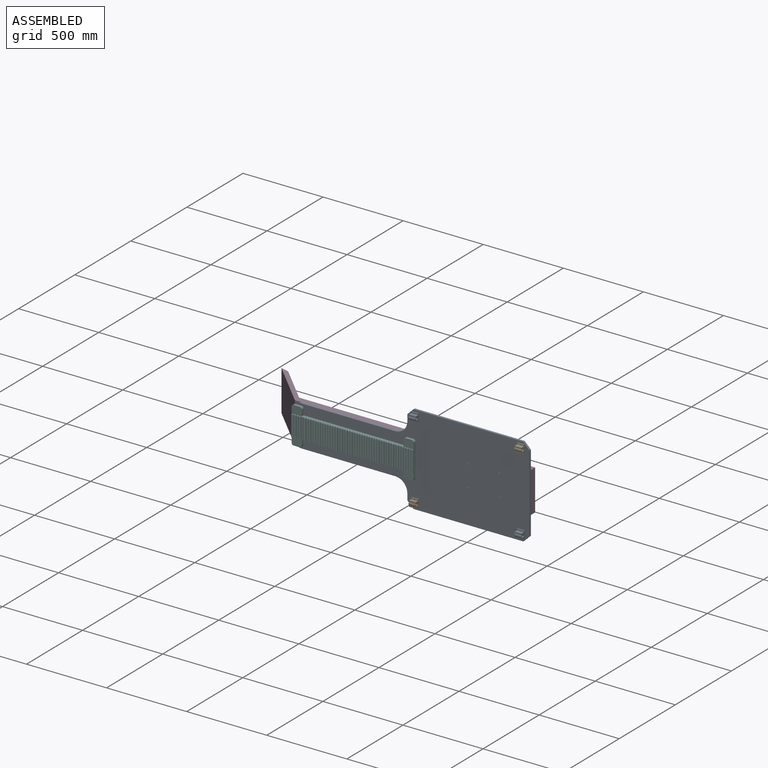
[diagram: assembled view]
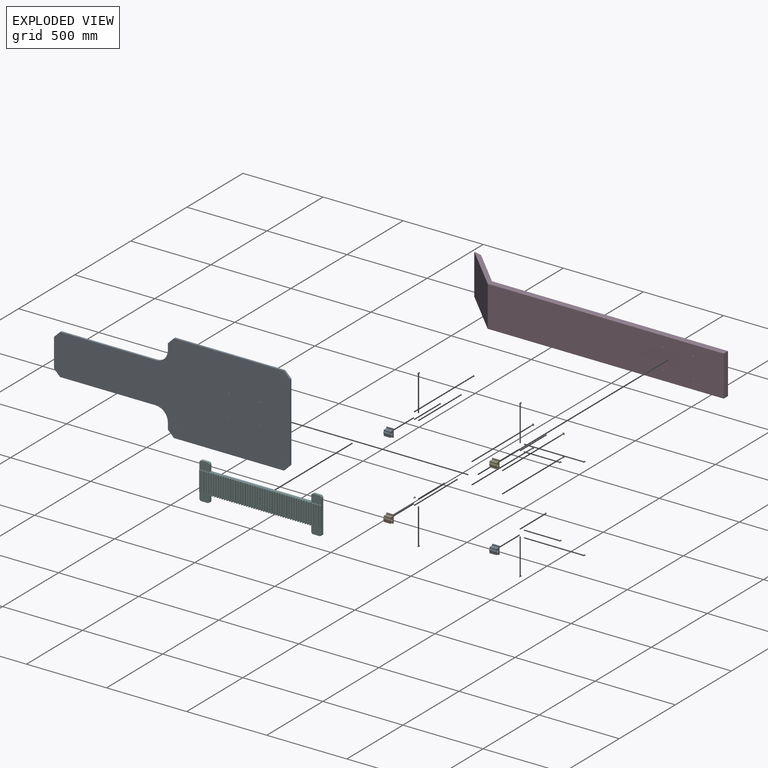
[diagram: exploded view]
GUIDED TOUR — MATED ASSEMBLY (Onshape document e9708ffabd6914f6b537aed8, AutoMate assembly e9708ffabd6914f6b537aed8_26f92d5d70f1b89094800ef0_7c7fea5a1ede16030653a03a_default)

This assembly has 27 components, labeled P0..P26 below (a component is one placed occurrence of a part; the same part can appear more than once), held together by 26 mates. A mate is a constraint between two components; its type names the relative motion it leaves free:
  FASTENED — locks the two components together rigidly (no relative motion).
Axis/direction vectors are unit vectors and 'through' points are millimeter coordinates, both in the assembly's world frame.

MATES
  1. FASTENED "Fastened 4": P12 <-> P24, direction (0.000, 1.000, 0.000) through (999.34, 252.25, 369.30) mm
  2. FASTENED "Fastened 9": P22 <-> P24, direction (0.000, -1.000, 0.000) through (338.93, 264.95, 326.43) mm
  3. FASTENED "Fastened 13": P2 <-> P24, direction (0.000, -1.000, 0.000) through (999.34, 264.95, 326.43) mm
  4. FASTENED "Fastened 21": P26 <-> P24, direction (0.000, -1.000, 0.000) through (338.93, 264.95, -115.69) mm
  5. FASTENED "Fastened 22": P17 <-> P24, direction (0.000, -1.000, 0.000) through (364.33, 264.95, -115.69) mm
  6. FASTENED "Fastened 8": P13 <-> P24, direction (0.000, -1.000, 0.000) through (338.93, 264.95, 369.30) mm
  7. FASTENED "Fastened 5": P0 <-> P24, direction (0.000, 1.000, 0.000) through (999.34, 252.25, -115.69) mm
  8. FASTENED "Fastened 14": P18 <-> P24, direction (0.000, -1.000, 0.000) through (1024.74, 264.95, 326.43) mm
  9. FASTENED "Fastened 2": P25 <-> P24, direction (0.000, 1.000, 0.000) through (338.93, 252.25, -115.69) mm
  10. FASTENED "Fastened 12": P9 <-> P24, direction (0.000, -1.000, 0.000) through (1024.74, 264.95, 369.30) mm
  11. FASTENED "Fastened 7": P23 <-> P24, direction (0.000, -1.000, 0.000) through (364.33, 264.95, 369.30) mm
  12. FASTENED "Fastened 3": P16 <-> P24, direction (0.000, 1.000, 0.000) through (364.33, 252.25, 326.43) mm
  13. FASTENED "Fastened 23": P3 <-> P11, direction (0.000, -1.000, 0.000) through (681.83, 303.05, 170.85) mm
  14. FASTENED "Fastened 20": P7 <-> P24, direction (0.000, -1.000, 0.000) through (364.33, 264.95, -158.56) mm
  15. FASTENED "Fastened 25": P21 <-> P11, direction (0.000, -1.000, 0.000) through (681.83, 303.05, 39.89) mm
  16. FASTENED "Fastened 10": P15 <-> P24, direction (0.000, -1.000, 0.000) through (364.33, 264.95, 326.43) mm
  17. FASTENED "Fastened 19": P10 <-> P24, direction (0.000, -1.000, 0.000) through (338.93, 264.95, -158.56) mm
  18. FASTENED "Fastened 24": P1 <-> P11, direction (0.000, -1.000, 0.000) through (872.33, 303.05, 170.85) mm
  19. FASTENED "Fastened 6": P11 <-> P24, direction (0.000, -1.000, 0.000) through (872.33, 264.95, 39.89) mm
  20. FASTENED "Fastened 15": P6 <-> P24, direction (0.000, -1.000, 0.000) through (1024.74, 264.95, -158.56) mm
  21. FASTENED "Fastened 11": P8 <-> P24, direction (0.000, -1.000, 0.000) through (999.34, 264.95, 369.30) mm
  22. FASTENED "Fastened 1": P5 <-> P24, direction (0.000, 0.000, -1.000) through (-410.37, 252.25, 105.37) mm
  23. FASTENED "Fastened 17": P19 <-> P24, direction (0.000, -1.000, 0.000) through (999.34, 264.95, -115.69) mm
  24. FASTENED "Fastened 26": P14 <-> P11, direction (0.000, -1.000, 0.000) through (872.33, 303.05, 39.89) mm
  25. FASTENED "Fastened 18": P20 <-> P24, direction (0.000, -1.000, 0.000) through (1024.74, 264.95, -115.69) mm
  26. FASTENED "Fastened 16": P4 <-> P24, direction (0.000, -1.000, 0.000) through (999.34, 264.95, -158.56) mm

ASSEMBLY ORDER
  1. P26 — the base component [order verified]
  2. P22 [order verified]
  3. P17 [order verified]
  4. P15 [order verified]
  5. P19 [order verified]
  6. P2 [order verified]
  7. P13 [order verified]
  8. P10 [order verified]
  9. P24 [order verified]
  10. P20 [order verified]
  11. P18 [order verified]
  12. P9 [order verified]
  13. P6 [order verified]
  14. P21 [order verified]
  15. P14 [order verified]
  16. P3 [order verified]
  17. P1 [order verified]
  18. P11 [order verified]
  19. P25 [order verified]
  20. P16 [order verified]
  21. P12 [order verified]
  22. P0 [order verified]
  23. P5 [order verified]
  24. P23 [order verified]
  25. P7 [order verified]
  26. P4 [order verified]
  27. P8 [order verified]
Order-tag legend:
  [order verified] — this step's position reverses a verified removal order: the component was checked to insert without passing through the ones already placed.

Of the 27 components, 3 carry the full construction recipe — the FeatureScript program that regenerates the part's solid from scratch; the rest are supplied as boundary geometry only.
Because this assembly has more than 12 components, the tour below covers the 12 most significant ones individually (every recipe-attached component first, then the largest by part volume), in assembly order; the remaining 15 are summarized together in a grouped section at the end.
Each toured component is shown spotlighted twice — in the assembled view, then in the exploded view, where a leader line traces a displaced component back to its assembled socket (saturated green if recipe-attached, orange if geometry-only; every other component desaturated gray) — followed by its recipe or geometry summary and the mates that hold it.
NOTE — document 2 of 2 of this assembly tour. The two overview renders and the header above are repeated from document 1; the component sections below continue where the previous document stopped.
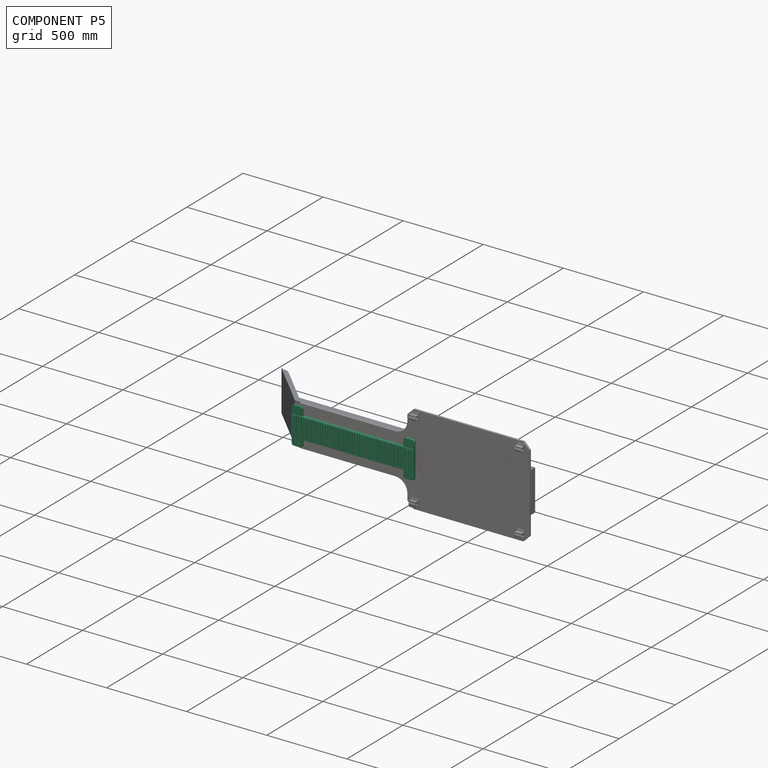
[diagram: component P5 — assembled]
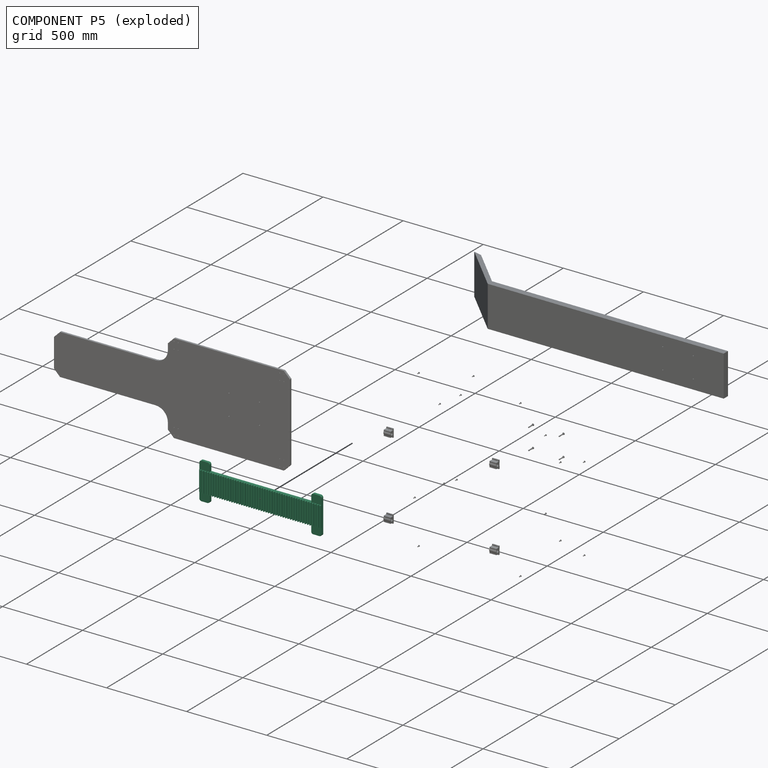
[diagram: component P5 — exploded]
COMPONENT P5 — recipe-attached (CADFS 00270914, mesh-verified: the recipe's output STEP matches this component's geometry to below the mesh-comparison resolution (tessellation chordal tolerance ~1.19 mm)).
Held by: FASTENED mate "Fastened 1" to P24.
Construction recipe (FeatureScript — the CAD program that rebuilds this solid; sketch coordinates are in the units given by the * unit suffixes, e.g. mm):

FeatureScript 1511;
import(path : "onshape/std/geometry.fs", version : "1511.0");
import(path : "onshape/std/common.fs", version : "1511.0");
const mm = millimeter;
const VERTEX = EntityType.VERTEX;
const EDGE = EntityType.EDGE;
const FACE = EntityType.FACE;
const BODY = EntityType.BODY;
function v(x, y){return vector(x, y);}
function OD(order){return orderDisambiguation(order);}
function OSD(set){return originalSetDisambiguation(set);}
function TD(topology){return topologyDisambiguation(topology);}
function TDD(query){return trueDependencyDisambiguation(query);}
function sQuery(a, b, c) {return sketchEntityQuery(a, b, c);}

annotation { "Feature Type Name" : "Feature", "Feature Type Description" : "" }
export const myFeature = defineFeature(function(context is Context, id is Id, definition is map)
    precondition{}
    {
        {
            var Q0;
            Q0=qCreatedBy(makeId("Front.planeOp"),FACE);
            var sketch = newSketch(context, id + "F0", { "sketchPlane" : qUnion([Q0])});
            skLineSegment(sketch, "E0", {"start": v(0, 0) * mm, "end": v(63.5, 0) * mm});
            skLineSegment(sketch, "E1.0", {"start": v(0, 228.6) * mm, "end": v(63.5, 228.6) * mm});
            skLineSegment(sketch, "E2", {"start": v(762, 0) * mm, "end": v(762, 228.6) * mm});
            skLineSegment(sketch, "E3", {"start": v(0, 228.6) * mm, "end": v(0, 0) * mm});
            skLineSegment(sketch, "E4.0", {"start": v(63.5, 177.8) * mm, "end": v(698.5, 177.8) * mm});
            skLineSegment(sketch, "E5.0", {"start": v(63.5, 50.8) * mm, "end": v(698.5, 50.8) * mm});
            skLineSegment(sketch, "E6.0", {"start": v(63.5, 228.6) * mm, "end": v(63.5, 177.8) * mm});
            skLineSegment(sketch, "E7.0", {"start": v(698.5, 0) * mm, "end": v(698.5, 50.8) * mm});
            skLineSegment(sketch, "E8.trimOffspring", {"start": v(698.5, 228.6) * mm, "end": v(762, 228.6) * mm});
            skLineSegment(sketch, "E9.trimOffspring", {"start": v(698.5, 0) * mm, "end": v(762, 0) * mm});
            skLineSegment(sketch, "E10.trimOffspring", {"start": v(698.5, 177.8) * mm, "end": v(698.5, 228.6) * mm});
            skLineSegment(sketch, "E11.trimOffspring", {"start": v(63.5, 50.8) * mm, "end": v(63.5, 0) * mm});
            skSolve(sketch);
        }
        {
            var Q0;
            Q0 = qSketchRegion(id + "F0", true);
            extrude(context, id + "F1", {"entities" : qUnion([Q0]), "depth" : 19.05 * mm});
        }
        {
            var Q0;
            Q0=makeQuery(id+"F1.opExtrude","CAP_FACE",FACE,{"disambiguationData":[OSD([sQuery(id+"F0.wireOp",EDGE,"E0"),sQuery(id+"F0.wireOp",EDGE,"E1.0"),sQuery(id+"F0.wireOp",EDGE,"E2"),sQuery(id+"F0.wireOp",EDGE,"E3"),sQuery(id+"F0.wireOp",EDGE,"E4.0"),sQuery(id+"F0.wireOp",EDGE,"E5.0"),sQuery(id+"F0.wireOp",EDGE,"E6.0"),sQuery(id+"F0.wireOp",EDGE,"E7.0"),sQuery(id+"F0.wireOp",EDGE,"E8.trimOffspring"),sQuery(id+"F0.wireOp",EDGE,"E9.trimOffspring"),sQuery(id+"F0.wireOp",EDGE,"E10.trimOffspring"),sQuery(id+"F0.wireOp",EDGE,"E11.trimOffspring")])],"isStart":false});
            var sketch = newSketch(context, id + "F2", { "sketchPlane" : qUnion([Q0])});
            skLineSegment(sketch, "E12", {"start": v(762, 177.8) * mm, "end": v(0, 177.8) * mm});
            skLineSegment(sketch, "E13", {"start": v(0, 177.8) * mm, "end": v(0, 50.8) * mm});
            skLineSegment(sketch, "E14", {"start": v(0, 50.8) * mm, "end": v(762, 50.8) * mm});
            skLineSegment(sketch, "E15", {"start": v(762, 50.8) * mm, "end": v(762, 177.8) * mm});
            skLineSegment(sketch, "E16.1.0.0", {"start": v(7.62, 177.8) * mm, "end": v(7.62, 50.8) * mm});
            skLineSegment(sketch, "E16.2.0.0", {"start": v(15.24, 177.8) * mm, "end": v(15.24, 50.8) * mm});
            skLineSegment(sketch, "E16.direction1", {"start": v(0, 50.8) * mm, "end": v(7.62, 50.8) * mm, "construction": true});
            skLineSegment(sketch, "E17.0.3.0", {"start": v(22.86, 177.8) * mm, "end": v(22.86, 50.8) * mm});
            skLineSegment(sketch, "E17.0.4.0", {"start": v(30.48, 177.8) * mm, "end": v(30.48, 50.8) * mm});
            skLineSegment(sketch, "E17.0.5.0", {"start": v(38.1, 177.8) * mm, "end": v(38.1, 50.8) * mm});
            skLineSegment(sketch, "E17.0.6.0", {"start": v(45.72, 177.8) * mm, "end": v(45.72, 50.8) * mm});
            skLineSegment(sketch, "E17.0.7.0", {"start": v(53.34, 177.8) * mm, "end": v(53.34, 50.8) * mm});
            skLineSegment(sketch, "E17.0.8.0", {"start": v(60.96, 177.8) * mm, "end": v(60.96, 50.8) * mm});
            skLineSegment(sketch, "E17.0.9.0", {"start": v(68.58, 177.8) * mm, "end": v(68.58, 50.8) * mm});
            skLineSegment(sketch, "E17.0.10.0", {"start": v(76.2, 177.8) * mm, "end": v(76.2, 50.8) * mm});
            skLineSegment(sketch, "E17.0.11.0", {"start": v(83.82, 177.8) * mm, "end": v(83.82, 50.8) * mm});
            skLineSegment(sketch, "E17.0.12.0", {"start": v(91.44, 177.8) * mm, "end": v(91.44, 50.8) * mm});
            skLineSegment(sketch, "E17.0.13.0", {"start": v(99.06, 177.8) * mm, "end": v(99.06, 50.8) * mm});
            skLineSegment(sketch, "E17.0.14.0", {"start": v(106.68, 177.8) * mm, "end": v(106.68, 50.8) * mm});
            skLineSegment(sketch, "E17.0.15.0", {"start": v(114.3, 177.8) * mm, "end": v(114.3, 50.8) * mm});
            skLineSegment(sketch, "E17.0.16.0", {"start": v(121.92, 177.8) * mm, "end": v(121.92, 50.8) * mm});
            skLineSegment(sketch, "E17.0.17.0", {"start": v(129.54, 177.8) * mm, "end": v(129.54, 50.8) * mm});
            skLineSegment(sketch, "E17.0.18.0", {"start": v(137.16, 177.8) * mm, "end": v(137.16, 50.8) * mm});
            skLineSegment(sketch, "E17.0.19.0", {"start": v(144.78, 177.8) * mm, "end": v(144.78, 50.8) * mm});
            skLineSegment(sketch, "E17.0.20.0", {"start": v(152.4, 177.8) * mm, "end": v(152.4, 50.8) * mm});
            skLineSegment(sketch, "E17.0.21.0", {"start": v(160.02, 177.8) * mm, "end": v(160.02, 50.8) * mm});
            skLineSegment(sketch, "E17.0.22.0", {"start": v(167.64, 177.8) * mm, "end": v(167.64, 50.8) * mm});
            skLineSegment(sketch, "E17.0.23.0", {"start": v(175.26, 177.8) * mm, "end": v(175.26, 50.8) * mm});
            skLineSegment(sketch, "E17.0.24.0", {"start": v(182.88, 177.8) * mm, "end": v(182.88, 50.8) * mm});
            skLineSegment(sketch, "E17.0.25.0", {"start": v(190.5, 177.8) * mm, "end": v(190.5, 50.8) * mm});
            skLineSegment(sketch, "E17.0.26.0", {"start": v(198.12, 177.8) * mm, "end": v(198.12, 50.8) * mm});
            skLineSegment(sketch, "E17.0.27.0", {"start": v(205.74, 177.8) * mm, "end": v(205.74, 50.8) * mm});
            skLineSegment(sketch, "E17.0.28.0", {"start": v(213.36, 177.8) * mm, "end": v(213.36, 50.8) * mm});
            skLineSegment(sketch, "E17.0.29.0", {"start": v(220.98, 177.8) * mm, "end": v(220.98, 50.8) * mm});
            skLineSegment(sketch, "E17.0.30.0", {"start": v(228.6, 177.8) * mm, "end": v(228.6, 50.8) * mm});
            skLineSegment(sketch, "E17.0.31.0", {"start": v(236.22, 177.8) * mm, "end": v(236.22, 50.8) * mm});
            skLineSegment(sketch, "E17.0.32.0", {"start": v(243.84, 177.8) * mm, "end": v(243.84, 50.8) * mm});
            skLineSegment(sketch, "E17.0.33.0", {"start": v(251.46, 177.8) * mm, "end": v(251.46, 50.8) * mm});
            skLineSegment(sketch, "E17.0.34.0", {"start": v(259.08, 177.8) * mm, "end": v(259.08, 50.8) * mm});
            skLineSegment(sketch, "E17.0.35.0", {"start": v(266.7, 177.8) * mm, "end": v(266.7, 50.8) * mm});
            skLineSegment(sketch, "E17.0.36.0", {"start": v(274.32, 177.8) * mm, "end": v(274.32, 50.8) * mm});
            skLineSegment(sketch, "E17.0.37.0", {"start": v(281.94, 177.8) * mm, "end": v(281.94, 50.8) * mm});
            skLineSegment(sketch, "E17.0.38.0", {"start": v(289.56, 177.8) * mm, "end": v(289.56, 50.8) * mm});
            skLineSegment(sketch, "E17.0.39.0", {"start": v(297.18, 177.8) * mm, "end": v(297.18, 50.8) * mm});
            skLineSegment(sketch, "E17.0.40.0", {"start": v(304.8, 177.8) * mm, "end": v(304.8, 50.8) * mm});
            skLineSegment(sketch, "E17.0.41.0", {"start": v(312.42, 177.8) * mm, "end": v(312.42, 50.8) * mm});
            skLineSegment(sketch, "E17.0.42.0", {"start": v(320.04, 177.8) * mm, "end": v(320.04, 50.8) * mm});
            skLineSegment(sketch, "E17.0.43.0", {"start": v(327.66, 177.8) * mm, "end": v(327.66, 50.8) * mm});
            skLineSegment(sketch, "E17.0.44.0", {"start": v(335.28, 177.8) * mm, "end": v(335.28, 50.8) * mm});
            skLineSegment(sketch, "E17.0.45.0", {"start": v(342.9, 177.8) * mm, "end": v(342.9, 50.8) * mm});
            skLineSegment(sketch, "E17.0.46.0", {"start": v(350.52, 177.8) * mm, "end": v(350.52, 50.8) * mm});
            skLineSegment(sketch, "E17.0.47.0", {"start": v(358.14, 177.8) * mm, "end": v(358.14, 50.8) * mm});
            skLineSegment(sketch, "E17.0.48.0", {"start": v(365.76, 177.8) * mm, "end": v(365.76, 50.8) * mm});
            skLineSegment(sketch, "E17.0.49.0", {"start": v(373.38, 177.8) * mm, "end": v(373.38, 50.8) * mm});
            skLineSegment(sketch, "E18.0.50.0", {"start": v(381, 177.8) * mm, "end": v(381, 50.8) * mm});
            skLineSegment(sketch, "E18.0.51.0", {"start": v(388.62, 177.8) * mm, "end": v(388.62, 50.8) * mm});
            skLineSegment(sketch, "E18.0.52.0", {"start": v(396.24, 177.8) * mm, "end": v(396.24, 50.8) * mm});
            skLineSegment(sketch, "E18.0.53.0", {"start": v(403.86, 177.8) * mm, "end": v(403.86, 50.8) * mm});
            skLineSegment(sketch, "E18.0.54.0", {"start": v(411.48, 177.8) * mm, "end": v(411.48, 50.8) * mm});
            skLineSegment(sketch, "E18.0.55.0", {"start": v(419.1, 177.8) * mm, "end": v(419.1, 50.8) * mm});
            skLineSegment(sketch, "E18.0.56.0", {"start": v(426.72, 177.8) * mm, "end": v(426.72, 50.8) * mm});
            skLineSegment(sketch, "E18.0.57.0", {"start": v(434.34, 177.8) * mm, "end": v(434.34, 50.8) * mm});
            skLineSegment(sketch, "E18.0.58.0", {"start": v(441.96, 177.8) * mm, "end": v(441.96, 50.8) * mm});
            skLineSegment(sketch, "E18.0.59.0", {"start": v(449.58, 177.8) * mm, "end": v(449.58, 50.8) * mm});
            skLineSegment(sketch, "E18.0.60.0", {"start": v(457.2, 177.8) * mm, "end": v(457.2, 50.8) * mm});
            skLineSegment(sketch, "E18.0.61.0", {"start": v(464.82, 177.8) * mm, "end": v(464.82, 50.8) * mm});
            skLineSegment(sketch, "E18.0.62.0", {"start": v(472.44, 177.8) * mm, "end": v(472.44, 50.8) * mm});
            skLineSegment(sketch, "E18.0.63.0", {"start": v(480.06, 177.8) * mm, "end": v(480.06, 50.8) * mm});
            skLineSegment(sketch, "E18.0.64.0", {"start": v(487.68, 177.8) * mm, "end": v(487.68, 50.8) * mm});
            skLineSegment(sketch, "E18.0.65.0", {"start": v(495.3, 177.8) * mm, "end": v(495.3, 50.8) * mm});
            skLineSegment(sketch, "E18.0.66.0", {"start": v(502.92, 177.8) * mm, "end": v(502.92, 50.8) * mm});
            skLineSegment(sketch, "E18.0.67.0", {"start": v(510.54, 177.8) * mm, "end": v(510.54, 50.8) * mm});
            skLineSegment(sketch, "E18.0.68.0", {"start": v(518.16, 177.8) * mm, "end": v(518.16, 50.8) * mm});
            skLineSegment(sketch, "E18.0.69.0", {"start": v(525.78, 177.8) * mm, "end": v(525.78, 50.8) * mm});
            skLineSegment(sketch, "E18.0.70.0", {"start": v(533.4, 177.8) * mm, "end": v(533.4, 50.8) * mm});
            skLineSegment(sketch, "E18.0.71.0", {"start": v(541.02, 177.8) * mm, "end": v(541.02, 50.8) * mm});
            skLineSegment(sketch, "E18.0.72.0", {"start": v(548.64, 177.8) * mm, "end": v(548.64, 50.8) * mm});
            skLineSegment(sketch, "E18.0.73.0", {"start": v(556.26, 177.8) * mm, "end": v(556.26, 50.8) * mm});
            skLineSegment(sketch, "E18.0.74.0", {"start": v(563.88, 177.8) * mm, "end": v(563.88, 50.8) * mm});
            skLineSegment(sketch, "E18.0.75.0", {"start": v(571.5, 177.8) * mm, "end": v(571.5, 50.8) * mm});
            skLineSegment(sketch, "E18.0.76.0", {"start": v(579.12, 177.8) * mm, "end": v(579.12, 50.8) * mm});
            skLineSegment(sketch, "E18.0.77.0", {"start": v(586.74, 177.8) * mm, "end": v(586.74, 50.8) * mm});
            skLineSegment(sketch, "E18.0.78.0", {"start": v(594.36, 177.8) * mm, "end": v(594.36, 50.8) * mm});
            skLineSegment(sketch, "E18.0.79.0", {"start": v(601.98, 177.8) * mm, "end": v(601.98, 50.8) * mm});
            skLineSegment(sketch, "E18.0.80.0", {"start": v(609.6, 177.8) * mm, "end": v(609.6, 50.8) * mm});
            skLineSegment(sketch, "E18.0.81.0", {"start": v(617.22, 177.8) * mm, "end": v(617.22, 50.8) * mm});
            skLineSegment(sketch, "E18.0.82.0", {"start": v(624.84, 177.8) * mm, "end": v(624.84, 50.8) * mm});
            skLineSegment(sketch, "E18.0.83.0", {"start": v(632.46, 177.8) * mm, "end": v(632.46, 50.8) * mm});
            skLineSegment(sketch, "E18.0.84.0", {"start": v(640.08, 177.8) * mm, "end": v(640.08, 50.8) * mm});
            skLineSegment(sketch, "E18.0.85.0", {"start": v(647.7, 177.8) * mm, "end": v(647.7, 50.8) * mm});
            skLineSegment(sketch, "E18.0.86.0", {"start": v(655.32, 177.8) * mm, "end": v(655.32, 50.8) * mm});
            skLineSegment(sketch, "E18.0.87.0", {"start": v(662.94, 177.8) * mm, "end": v(662.94, 50.8) * mm});
            skLineSegment(sketch, "E18.0.88.0", {"start": v(670.56, 177.8) * mm, "end": v(670.56, 50.8) * mm});
            skLineSegment(sketch, "E18.0.89.0", {"start": v(678.18, 177.8) * mm, "end": v(678.18, 50.8) * mm});
            skLineSegment(sketch, "E18.0.90.0", {"start": v(685.8, 177.8) * mm, "end": v(685.8, 50.8) * mm});
            skLineSegment(sketch, "E18.0.91.0", {"start": v(693.42, 177.8) * mm, "end": v(693.42, 50.8) * mm});
            skLineSegment(sketch, "E18.0.92.0", {"start": v(701.04, 177.8) * mm, "end": v(701.04, 50.8) * mm});
            skLineSegment(sketch, "E18.0.93.0", {"start": v(708.66, 177.8) * mm, "end": v(708.66, 50.8) * mm});
            skLineSegment(sketch, "E18.0.94.0", {"start": v(716.28, 177.8) * mm, "end": v(716.28, 50.8) * mm});
            skLineSegment(sketch, "E18.0.95.0", {"start": v(723.9, 177.8) * mm, "end": v(723.9, 50.8) * mm});
            skLineSegment(sketch, "E18.0.96.0", {"start": v(731.52, 177.8) * mm, "end": v(731.52, 50.8) * mm});
            skLineSegment(sketch, "E18.0.97.0", {"start": v(739.14, 177.8) * mm, "end": v(739.14, 50.8) * mm});
            skLineSegment(sketch, "E18.0.98.0", {"start": v(746.76, 177.8) * mm, "end": v(746.76, 50.8) * mm});
            skLineSegment(sketch, "E18.0.99.0", {"start": v(754.38, 177.8) * mm, "end": v(754.38, 50.8) * mm});
            skSolve(sketch);
        }
        {
            var Q0;
            {var subQ7=makeQuery(id+"F1.opExtrude","CAP_EDGE",EDGE,{"disambiguationData":[OSD([sQuery(id+"F0.wireOp",EDGE,"E1.0")])],"isStart":false});Q0=makeQuery(id+"F2.imprint","IMPRINT",FACE,{"disambiguationData":[TD([[makeQuery(id+"F2.imprint","IMPRINT",EDGE,{"derivedFrom":subQ7}),-1.0]])]});}
            var sketch = newSketch(context, id + "F3", { "sketchPlane" : qUnion([Q0])});
            skLineSegment(sketch, "E19", {"start": v(0, 228.6) * mm, "end": v(63.5, 228.6) * mm});
            skLineSegment(sketch, "E20", {"start": v(63.5, 228.6) * mm, "end": v(63.5, 177.8) * mm});
            skLineSegment(sketch, "E21", {"start": v(63.5, 177.8) * mm, "end": v(0, 177.8) * mm});
            skLineSegment(sketch, "E22", {"start": v(0, 0) * mm, "end": v(0, 50.8) * mm});
            skLineSegment(sketch, "E23", {"start": v(0, 50.8) * mm, "end": v(63.5, 50.8) * mm});
            skLineSegment(sketch, "E24", {"start": v(63.5, 50.8) * mm, "end": v(63.5, 0) * mm});
            skLineSegment(sketch, "E25", {"start": v(63.5, 0) * mm, "end": v(0, 0) * mm});
            skSolve(sketch);
        }
        {
            var Q0;
            Q0 = qSketchRegion(id + "F3", true);
            var Q1;
            {var subQ8=sQuery(id+"F3.wireOp",EDGE,"E19");Q1=makeQuery(id+"F3.imprint","IMPRINT",FACE,{"disambiguationData":[TD([[makeQuery(id+"F3.imprint","IMPRINT",EDGE,{"derivedFrom":subQ8}),-1.0]])]});}
            extrude(context, id + "F4", {"entities" : qUnion([Q0, Q1]), "operationType" : NewBodyOperationType.REMOVE, "oppositeDirection" : true, "depth" : 2.54 * mm});
        }
        {
            var Q0;
            {var subQ1=sQuery(id+"F0.wireOp",EDGE,"E7.0");var subQ7=sQuery(id+"F0.wireOp",EDGE,"E8.trimOffspring");var subQ10=sQuery(id+"F0.wireOp",EDGE,"E9.trimOffspring");var subQ50=sQuery(id+"F0.wireOp",EDGE,"E4.0");var subQ83=sQuery(id+"F0.wireOp",EDGE,"E10.trimOffspring");var subQ89=sQuery(id+"F0.wireOp",EDGE,"E2");var subQ94=sQuery(id+"F0.wireOp",EDGE,"E5.0");Q0=makeQuery(id+"F9L2YdqkWQCteiL_1.boolean.opBoolean","SPLIT",FACE,{"disambiguationData":[TD([makeQuery(id+"F1.opExtrude","SWEPT_FACE",FACE,{"disambiguationData":[OSD([subQ89])]})])],"derivedFrom":makeQuery(id+"F1.opExtrude","CAP_FACE",FACE,{"disambiguationData":[OSD([sQuery(id+"F0.wireOp",EDGE,"E0"),sQuery(id+"F0.wireOp",EDGE,"E1.0"),subQ89,sQuery(id+"F0.wireOp",EDGE,"E3"),subQ50,subQ94,sQuery(id+"F0.wireOp",EDGE,"E6.0"),subQ1,subQ7,subQ10,subQ83,sQuery(id+"F0.wireOp",EDGE,"E11.trimOffspring")])],"isStart":false})});}
            var sketch = newSketch(context, id + "F5", { "sketchPlane" : qUnion([Q0])});
            skLineSegment(sketch, "E26", {"start": v(698.5, 228.6) * mm, "end": v(698.5, 177.8) * mm});
            skLineSegment(sketch, "E27", {"start": v(698.5, 177.8) * mm, "end": v(762, 177.8) * mm});
            skLineSegment(sketch, "E28", {"start": v(762, 177.8) * mm, "end": v(762, 228.6) * mm});
            skLineSegment(sketch, "E29", {"start": v(762, 228.6) * mm, "end": v(698.5, 228.6) * mm});
            skLineSegment(sketch, "E30", {"start": v(698.5, 0) * mm, "end": v(762, 0) * mm});
            skLineSegment(sketch, "E31", {"start": v(762, 0) * mm, "end": v(762, 50.8) * mm});
            skLineSegment(sketch, "E32", {"start": v(762, 50.8) * mm, "end": v(701.04, 50.8) * mm});
            skLineSegment(sketch, "E33", {"start": v(701.04, 50.8) * mm, "end": v(698.5, 50.8) * mm});
            skLineSegment(sketch, "E34", {"start": v(698.5, 50.8) * mm, "end": v(698.5, 0) * mm});
            skSolve(sketch);
        }
        {
            var Q0;
            {var subQ7=sQuery(id+"F5.wireOp",EDGE,"E26");Q0=makeQuery(id+"F5.imprint","IMPRINT",FACE,{"disambiguationData":[TD([[makeQuery(id+"F5.imprint","IMPRINT",EDGE,{"derivedFrom":subQ7}),-1.0]])]});}
            var Q1;
            Q1=makeQuery(id+"F5.imprint","IMPRINT",FACE,{"disambiguationData":[TD([[makeQuery(id+"F5.imprint","IMPRINT",EDGE,{"derivedFrom":sQuery(id+"F5.wireOp",EDGE,"E30")}),1.0]])]});
            extrude(context, id + "F6", {"entities" : qUnion([Q0, Q1]), "operationType" : NewBodyOperationType.REMOVE, "oppositeDirection" : true, "depth" : 2.54 * mm});
        }
        {
            var Q0;
            Q0=makeQuery(id+"F1.opExtrude","SWEPT_EDGE",EDGE,{"disambiguationData":[OSD([sQuery(id+"F0.wireOp",EDGE,"E1.0"),sQuery(id+"F0.wireOp",EDGE,"E6.0")])]});
            var Q1;
            Q1=makeQuery(id+"F1.opExtrude","SWEPT_EDGE",EDGE,{"disambiguationData":[OSD([sQuery(id+"F0.wireOp",EDGE,"E1.0"),sQuery(id+"F0.wireOp",EDGE,"E3")])]});
            var Q2;
            Q2=makeQuery(id+"F1.opExtrude","SWEPT_EDGE",EDGE,{"disambiguationData":[OSD([sQuery(id+"F0.wireOp",EDGE,"E0"),sQuery(id+"F0.wireOp",EDGE,"E11.trimOffspring")])]});
            var Q3;
            Q3=makeQuery(id+"F1.opExtrude","SWEPT_EDGE",EDGE,{"disambiguationData":[OSD([sQuery(id+"F0.wireOp",EDGE,"E0"),sQuery(id+"F0.wireOp",EDGE,"E3")])]});
            var Q4;
            Q4=makeQuery(id+"F1.opExtrude","SWEPT_EDGE",EDGE,{"disambiguationData":[OSD([sQuery(id+"F0.wireOp",EDGE,"E2"),sQuery(id+"F0.wireOp",EDGE,"E8.trimOffspring")])]});
            var Q5;
            Q5=makeQuery(id+"F1.opExtrude","SWEPT_EDGE",EDGE,{"disambiguationData":[OSD([sQuery(id+"F0.wireOp",EDGE,"E8.trimOffspring"),sQuery(id+"F0.wireOp",EDGE,"E10.trimOffspring")])]});
            var Q6;
            Q6=makeQuery(id+"F1.opExtrude","SWEPT_EDGE",EDGE,{"disambiguationData":[OSD([sQuery(id+"F0.wireOp",EDGE,"E2"),sQuery(id+"F0.wireOp",EDGE,"E9.trimOffspring")])]});
            var Q7;
            Q7=makeQuery(id+"F1.opExtrude","SWEPT_EDGE",EDGE,{"disambiguationData":[OSD([sQuery(id+"F0.wireOp",EDGE,"E7.0"),sQuery(id+"F0.wireOp",EDGE,"E9.trimOffspring")])]});
            fillet(context, id + "F7", {"entities" : qUnion([Q0, Q1, Q2, Q3, Q4, Q5, Q6, Q7]), "radius" : 12.7 * mm, "tangentPropagation" : true, "allowEdgeOverflow" : false});
        }
        {
            var Q0;
            {var subQ0=sQuery(id+"F2.wireOp",EDGE,"E14");var subQ1=makeQuery(id+"F2.imprint","INTERSECT",VERTEX,{"derivedFrom":[makeQuery(id+"F1.opExtrude","CAP_EDGE",EDGE,{"disambiguationData":[OSD([sQuery(id+"F0.wireOp",EDGE,"E7.0")])],"isStart":false}),subQ0]});Q0=makeQuery(id+"F6.boolean.opBoolean","MERGE",FACE,{"derivedFrom":[makeQuery(id+"F9L2YdqkWQCteiL_1.opExtrude","SWEPT_FACE",FACE,{"disambiguationData":[OSD([subQ0]),TDD([makeQuery(id+"F2.imprint","IMPRINT",EDGE,{"disambiguationData":[TD([[makeQuery(id+"F2.imprint","INTERSECT",VERTEX,{"derivedFrom":[subQ0,sQuery(id+"F2.wireOp",EDGE,"E18.0.93.0")]}),-1.0]])],"derivedFrom":subQ0})])]}),makeQuery(id+"F9L2YdqkWQCteiL_1.opExtrude","SWEPT_FACE",FACE,{"disambiguationData":[OSD([subQ0]),TDD([makeQuery(id+"F2.imprint","IMPRINT",EDGE,{"disambiguationData":[TD([[makeQuery(id+"F2.imprint","INTERSECT",VERTEX,{"derivedFrom":[subQ0,sQuery(id+"F2.wireOp",EDGE,"E18.0.95.0")]}),-1.0]])],"derivedFrom":subQ0})])]}),makeQuery(id+"F9L2YdqkWQCteiL_1.opExtrude","SWEPT_FACE",FACE,{"disambiguationData":[OSD([subQ0]),TDD([makeQuery(id+"F2.imprint","IMPRINT",EDGE,{"disambiguationData":[TD([[makeQuery(id+"F2.imprint","INTERSECT",VERTEX,{"derivedFrom":[subQ0,sQuery(id+"F2.wireOp",EDGE,"E18.0.97.0")]}),-1.0]])],"derivedFrom":subQ0})])]}),makeQuery(id+"F9L2YdqkWQCteiL_1.opExtrude","SWEPT_FACE",FACE,{"disambiguationData":[OSD([subQ0]),TDD([makeQuery(id+"F2.imprint","IMPRINT",EDGE,{"disambiguationData":[TD([[makeQuery(id+"F2.imprint","INTERSECT",VERTEX,{"derivedFrom":[subQ0,sQuery(id+"F2.wireOp",EDGE,"E18.0.99.0")]}),-1.0]])],"derivedFrom":subQ0})])]}),makeQuery(id+"F4.boolean.opBoolean","MERGE",FACE,{"derivedFrom":[makeQuery(id+"F9L2YdqkWQCteiL_1.opExtrude","SWEPT_FACE",FACE,{"disambiguationData":[OSD([subQ0]),TDD([makeQuery(id+"F2.imprint","IMPRINT",EDGE,{"disambiguationData":[TD([[makeQuery(id+"F2.imprint","INTERSECT",VERTEX,{"derivedFrom":[subQ0,sQuery(id+"F2.wireOp",EDGE,"E16.1.0.0")]}),-1.0]])],"derivedFrom":subQ0})])]}),makeQuery(id+"F9L2YdqkWQCteiL_1.opExtrude","SWEPT_FACE",FACE,{"disambiguationData":[OSD([subQ0]),TDD([makeQuery(id+"F2.imprint","IMPRINT",EDGE,{"disambiguationData":[TD([[makeQuery(id+"F2.imprint","INTERSECT",VERTEX,{"derivedFrom":[subQ0,sQuery(id+"F2.wireOp",EDGE,"E17.0.3.0")]}),-1.0]])],"derivedFrom":subQ0})])]}),makeQuery(id+"F9L2YdqkWQCteiL_1.opExtrude","SWEPT_FACE",FACE,{"disambiguationData":[OSD([subQ0]),TDD([makeQuery(id+"F2.imprint","IMPRINT",EDGE,{"disambiguationData":[TD([[makeQuery(id+"F2.imprint","INTERSECT",VERTEX,{"derivedFrom":[subQ0,sQuery(id+"F2.wireOp",EDGE,"E17.0.5.0")]}),-1.0]])],"derivedFrom":subQ0})])]}),makeQuery(id+"F9L2YdqkWQCteiL_1.opExtrude","SWEPT_FACE",FACE,{"disambiguationData":[OSD([subQ0]),TDD([makeQuery(id+"F2.imprint","IMPRINT",EDGE,{"disambiguationData":[TD([[makeQuery(id+"F2.imprint","INTERSECT",VERTEX,{"derivedFrom":[subQ0,sQuery(id+"F2.wireOp",EDGE,"E17.0.7.0")]}),-1.0]])],"derivedFrom":subQ0})])]}),makeQuery(id+"F9L2YdqkWQCteiL_1.boolean.opBoolean","MERGE",FACE,{"derivedFrom":[makeQuery(id+"F1.opExtrude","SWEPT_FACE",FACE,{"disambiguationData":[OSD([sQuery(id+"F0.wireOp",EDGE,"E5.0")])]}),makeQuery(id+"F9L2YdqkWQCteiL_1.opExtrude","SWEPT_FACE",FACE,{"disambiguationData":[OSD([subQ0]),TDD([makeQuery(id+"F2.imprint","IMPRINT",EDGE,{"disambiguationData":[TD([[makeQuery(id+"F2.imprint","INTERSECT",VERTEX,{"derivedFrom":[subQ0,sQuery(id+"F2.wireOp",EDGE,"E17.0.9.0")]}),-1.0]])],"derivedFrom":subQ0})])]}),makeQuery(id+"F9L2YdqkWQCteiL_1.opExtrude","SWEPT_FACE",FACE,{"disambiguationData":[OSD([subQ0]),TDD([makeQuery(id+"F2.imprint","IMPRINT",EDGE,{"disambiguationData":[TD([[makeQuery(id+"F2.imprint","INTERSECT",VERTEX,{"derivedFrom":[subQ0,sQuery(id+"F2.wireOp",EDGE,"E17.0.11.0")]}),-1.0]])],"derivedFrom":subQ0})])]}),makeQuery(id+"F9L2YdqkWQCteiL_1.opExtrude","SWEPT_FACE",FACE,{"disambiguationData":[OSD([subQ0]),TDD([makeQuery(id+"F2.imprint","IMPRINT",EDGE,{"disambiguationData":[TD([[makeQuery(id+"F2.imprint","INTERSECT",VERTEX,{"derivedFrom":[subQ0,sQuery(id+"F2.wireOp",EDGE,"E17.0.13.0")]}),-1.0]])],"derivedFrom":subQ0})])]}),makeQuery(id+"F9L2YdqkWQCteiL_1.opExtrude","SWEPT_FACE",FACE,{"disambiguationData":[OSD([subQ0]),TDD([makeQuery(id+"F2.imprint","IMPRINT",EDGE,{"disambiguationData":[TD([[makeQuery(id+"F2.imprint","INTERSECT",VERTEX,{"derivedFrom":[subQ0,sQuery(id+"F2.wireOp",EDGE,"E17.0.15.0")]}),-1.0]])],"derivedFrom":subQ0})])]}),makeQuery(id+"F9L2YdqkWQCteiL_1.opExtrude","SWEPT_FACE",FACE,{"disambiguationData":[OSD([subQ0]),TDD([makeQuery(id+"F2.imprint","IMPRINT",EDGE,{"disambiguationData":[TD([[makeQuery(id+"F2.imprint","INTERSECT",VERTEX,{"derivedFrom":[subQ0,sQuery(id+"F2.wireOp",EDGE,"E17.0.17.0")]}),-1.0]])],"derivedFrom":subQ0})])]}),makeQuery(id+"F9L2YdqkWQCteiL_1.opExtrude","SWEPT_FACE",FACE,{"disambiguationData":[OSD([subQ0]),TDD([makeQuery(id+"F2.imprint","IMPRINT",EDGE,{"disambiguationData":[TD([[makeQuery(id+"F2.imprint","INTERSECT",VERTEX,{"derivedFrom":[subQ0,sQuery(id+"F2.wireOp",EDGE,"E17.0.19.0")]}),-1.0]])],"derivedFrom":subQ0})])]}),makeQuery(id+"F9L2YdqkWQCteiL_1.opExtrude","SWEPT_FACE",FACE,{"disambiguationData":[OSD([subQ0]),TDD([makeQuery(id+"F2.imprint","IMPRINT",EDGE,{"disambiguationData":[TD([[makeQuery(id+"F2.imprint","INTERSECT",VERTEX,{"derivedFrom":[subQ0,sQuery(id+"F2.wireOp",EDGE,"E17.0.21.0")]}),-1.0]])],"derivedFrom":subQ0})])]}),makeQuery(id+"F9L2YdqkWQCteiL_1.opExtrude","SWEPT_FACE",FACE,{"disambiguationData":[OSD([subQ0]),TDD([makeQuery(id+"F2.imprint","IMPRINT",EDGE,{"disambiguationData":[TD([[makeQuery(id+"F2.imprint","INTERSECT",VERTEX,{"derivedFrom":[subQ0,sQuery(id+"F2.wireOp",EDGE,"E17.0.23.0")]}),-1.0]])],"derivedFrom":subQ0})])]}),makeQuery(id+"F9L2YdqkWQCteiL_1.opExtrude","SWEPT_FACE",FACE,{"disambiguationData":[OSD([subQ0]),TDD([makeQuery(id+"F2.imprint","IMPRINT",EDGE,{"disambiguationData":[TD([[makeQuery(id+"F2.imprint","INTERSECT",VERTEX,{"derivedFrom":[subQ0,sQuery(id+"F2.wireOp",EDGE,"E17.0.25.0")]}),-1.0]])],"derivedFrom":subQ0})])]}),makeQuery(id+"F9L2YdqkWQCteiL_1.opExtrude","SWEPT_FACE",FACE,{"disambiguationData":[OSD([subQ0]),TDD([makeQuery(id+"F2.imprint","IMPRINT",EDGE,{"disambiguationData":[TD([[makeQuery(id+"F2.imprint","INTERSECT",VERTEX,{"derivedFrom":[subQ0,sQuery(id+"F2.wireOp",EDGE,"E17.0.27.0")]}),-1.0]])],"derivedFrom":subQ0})])]}),makeQuery(id+"F9L2YdqkWQCteiL_1.opExtrude","SWEPT_FACE",FACE,{"disambiguationData":[OSD([subQ0]),TDD([makeQuery(id+"F2.imprint","IMPRINT",EDGE,{"disambiguationData":[TD([[makeQuery(id+"F2.imprint","INTERSECT",VERTEX,{"derivedFrom":[subQ0,sQuery(id+"F2.wireOp",EDGE,"E17.0.29.0")]}),-1.0]])],"derivedFrom":subQ0})])]}),makeQuery(id+"F9L2YdqkWQCteiL_1.opExtrude","SWEPT_FACE",FACE,{"disambiguationData":[OSD([subQ0]),TDD([makeQuery(id+"F2.imprint","IMPRINT",EDGE,{"disambiguationData":[TD([[makeQuery(id+"F2.imprint","INTERSECT",VERTEX,{"derivedFrom":[subQ0,sQuery(id+"F2.wireOp",EDGE,"E17.0.31.0")]}),-1.0]])],"derivedFrom":subQ0})])]}),makeQuery(id+"F9L2YdqkWQCteiL_1.opExtrude","SWEPT_FACE",FACE,{"disambiguationData":[OSD([subQ0]),TDD([makeQuery(id+"F2.imprint","IMPRINT",EDGE,{"disambiguationData":[TD([[makeQuery(id+"F2.imprint","INTERSECT",VERTEX,{"derivedFrom":[subQ0,sQuery(id+"F2.wireOp",EDGE,"E17.0.33.0")]}),-1.0]])],"derivedFrom":subQ0})])]}),makeQuery(id+"F9L2YdqkWQCteiL_1.opExtrude","SWEPT_FACE",FACE,{"disambiguationData":[OSD([subQ0]),TDD([makeQuery(id+"F2.imprint","IMPRINT",EDGE,{"disambiguationData":[TD([[makeQuery(id+"F2.imprint","INTERSECT",VERTEX,{"derivedFrom":[subQ0,sQuery(id+"F2.wireOp",EDGE,"E17.0.35.0")]}),-1.0]])],"derivedFrom":subQ0})])]}),makeQuery(id+"F9L2YdqkWQCteiL_1.opExtrude","SWEPT_FACE",FACE,{"disambiguationData":[OSD([subQ0]),TDD([makeQuery(id+"F2.imprint","IMPRINT",EDGE,{"disambiguationData":[TD([[makeQuery(id+"F2.imprint","INTERSECT",VERTEX,{"derivedFrom":[subQ0,sQuery(id+"F2.wireOp",EDGE,"E17.0.37.0")]}),-1.0]])],"derivedFrom":subQ0})])]}),makeQuery(id+"F9L2YdqkWQCteiL_1.opExtrude","SWEPT_FACE",FACE,{"disambiguationData":[OSD([subQ0]),TDD([makeQuery(id+"F2.imprint","IMPRINT",EDGE,{"disambiguationData":[TD([[makeQuery(id+"F2.imprint","INTERSECT",VERTEX,{"derivedFrom":[subQ0,sQuery(id+"F2.wireOp",EDGE,"E17.0.39.0")]}),-1.0]])],"derivedFrom":subQ0})])]}),makeQuery(id+"F9L2YdqkWQCteiL_1.opExtrude","SWEPT_FACE",FACE,{"disambiguationData":[OSD([subQ0]),TDD([makeQuery(id+"F2.imprint","IMPRINT",EDGE,{"disambiguationData":[TD([[makeQuery(id+"F2.imprint","INTERSECT",VERTEX,{"derivedFrom":[subQ0,sQuery(id+"F2.wireOp",EDGE,"E17.0.41.0")]}),-1.0]])],"derivedFrom":subQ0})])]}),makeQuery(id+"F9L2YdqkWQCteiL_1.opExtrude","SWEPT_FACE",FACE,{"disambiguationData":[OSD([subQ0]),TDD([makeQuery(id+"F2.imprint","IMPRINT",EDGE,{"disambiguationData":[TD([[makeQuery(id+"F2.imprint","INTERSECT",VERTEX,{"derivedFrom":[subQ0,sQuery(id+"F2.wireOp",EDGE,"E17.0.43.0")]}),-1.0]])],"derivedFrom":subQ0})])]}),makeQuery(id+"F9L2YdqkWQCteiL_1.opExtrude","SWEPT_FACE",FACE,{"disambiguationData":[OSD([subQ0]),TDD([makeQuery(id+"F2.imprint","IMPRINT",EDGE,{"disambiguationData":[TD([[makeQuery(id+"F2.imprint","INTERSECT",VERTEX,{"derivedFrom":[subQ0,sQuery(id+"F2.wireOp",EDGE,"E17.0.45.0")]}),-1.0]])],"derivedFrom":subQ0})])]}),makeQuery(id+"F9L2YdqkWQCteiL_1.opExtrude","SWEPT_FACE",FACE,{"disambiguationData":[OSD([subQ0]),TDD([makeQuery(id+"F2.imprint","IMPRINT",EDGE,{"disambiguationData":[TD([[makeQuery(id+"F2.imprint","INTERSECT",VERTEX,{"derivedFrom":[subQ0,sQuery(id+"F2.wireOp",EDGE,"E17.0.47.0")]}),-1.0]])],"derivedFrom":subQ0})])]}),makeQuery(id+"F9L2YdqkWQCteiL_1.opExtrude","SWEPT_FACE",FACE,{"disambiguationData":[OSD([subQ0]),TDD([makeQuery(id+"F2.imprint","IMPRINT",EDGE,{"disambiguationData":[TD([[makeQuery(id+"F2.imprint","INTERSECT",VERTEX,{"derivedFrom":[subQ0,sQuery(id+"F2.wireOp",EDGE,"E17.0.49.0")]}),-1.0]])],"derivedFrom":subQ0})])]}),makeQuery(id+"F9L2YdqkWQCteiL_1.opExtrude","SWEPT_FACE",FACE,{"disambiguationData":[OSD([subQ0]),TDD([makeQuery(id+"F2.imprint","IMPRINT",EDGE,{"disambiguationData":[TD([[makeQuery(id+"F2.imprint","INTERSECT",VERTEX,{"derivedFrom":[subQ0,sQuery(id+"F2.wireOp",EDGE,"E18.0.51.0")]}),-1.0]])],"derivedFrom":subQ0})])]}),makeQuery(id+"F9L2YdqkWQCteiL_1.opExtrude","SWEPT_FACE",FACE,{"disambiguationData":[OSD([subQ0]),TDD([makeQuery(id+"F2.imprint","IMPRINT",EDGE,{"disambiguationData":[TD([[makeQuery(id+"F2.imprint","INTERSECT",VERTEX,{"derivedFrom":[subQ0,sQuery(id+"F2.wireOp",EDGE,"E18.0.53.0")]}),-1.0]])],"derivedFrom":subQ0})])]}),makeQuery(id+"F9L2YdqkWQCteiL_1.opExtrude","SWEPT_FACE",FACE,{"disambiguationData":[OSD([subQ0]),TDD([makeQuery(id+"F2.imprint","IMPRINT",EDGE,{"disambiguationData":[TD([[makeQuery(id+"F2.imprint","INTERSECT",VERTEX,{"derivedFrom":[subQ0,sQuery(id+"F2.wireOp",EDGE,"E18.0.55.0")]}),-1.0]])],"derivedFrom":subQ0})])]}),makeQuery(id+"F9L2YdqkWQCteiL_1.opExtrude","SWEPT_FACE",FACE,{"disambiguationData":[OSD([subQ0]),TDD([makeQuery(id+"F2.imprint","IMPRINT",EDGE,{"disambiguationData":[TD([[makeQuery(id+"F2.imprint","INTERSECT",VERTEX,{"derivedFrom":[subQ0,sQuery(id+"F2.wireOp",EDGE,"E18.0.57.0")]}),-1.0]])],"derivedFrom":subQ0})])]}),makeQuery(id+"F9L2YdqkWQCteiL_1.opExtrude","SWEPT_FACE",FACE,{"disambiguationData":[OSD([subQ0]),TDD([makeQuery(id+"F2.imprint","IMPRINT",EDGE,{"disambiguationData":[TD([[makeQuery(id+"F2.imprint","INTERSECT",VERTEX,{"derivedFrom":[subQ0,sQuery(id+"F2.wireOp",EDGE,"E18.0.59.0")]}),-1.0]])],"derivedFrom":subQ0})])]}),makeQuery(id+"F9L2YdqkWQCteiL_1.opExtrude","SWEPT_FACE",FACE,{"disambiguationData":[OSD([subQ0]),TDD([makeQuery(id+"F2.imprint","IMPRINT",EDGE,{"disambiguationData":[TD([[makeQuery(id+"F2.imprint","INTERSECT",VERTEX,{"derivedFrom":[subQ0,sQuery(id+"F2.wireOp",EDGE,"E18.0.61.0")]}),-1.0]])],"derivedFrom":subQ0})])]}),makeQuery(id+"F9L2YdqkWQCteiL_1.opExtrude","SWEPT_FACE",FACE,{"disambiguationData":[OSD([subQ0]),TDD([makeQuery(id+"F2.imprint","IMPRINT",EDGE,{"disambiguationData":[TD([[makeQuery(id+"F2.imprint","INTERSECT",VERTEX,{"derivedFrom":[subQ0,sQuery(id+"F2.wireOp",EDGE,"E18.0.63.0")]}),-1.0]])],"derivedFrom":subQ0})])]}),makeQuery(id+"F9L2YdqkWQCteiL_1.opExtrude","SWEPT_FACE",FACE,{"disambiguationData":[OSD([subQ0]),TDD([makeQuery(id+"F2.imprint","IMPRINT",EDGE,{"disambiguationData":[TD([[makeQuery(id+"F2.imprint","INTERSECT",VERTEX,{"derivedFrom":[subQ0,sQuery(id+"F2.wireOp",EDGE,"E18.0.65.0")]}),-1.0]])],"derivedFrom":subQ0})])]}),makeQuery(id+"F9L2YdqkWQCteiL_1.opExtrude","SWEPT_FACE",FACE,{"disambiguationData":[OSD([subQ0]),TDD([makeQuery(id+"F2.imprint","IMPRINT",EDGE,{"disambiguationData":[TD([[makeQuery(id+"F2.imprint","INTERSECT",VERTEX,{"derivedFrom":[subQ0,sQuery(id+"F2.wireOp",EDGE,"E18.0.67.0")]}),-1.0]])],"derivedFrom":subQ0})])]}),makeQuery(id+"F9L2YdqkWQCteiL_1.opExtrude","SWEPT_FACE",FACE,{"disambiguationData":[OSD([subQ0]),TDD([makeQuery(id+"F2.imprint","IMPRINT",EDGE,{"disambiguationData":[TD([[makeQuery(id+"F2.imprint","INTERSECT",VERTEX,{"derivedFrom":[subQ0,sQuery(id+"F2.wireOp",EDGE,"E18.0.69.0")]}),-1.0]])],"derivedFrom":subQ0})])]}),makeQuery(id+"F9L2YdqkWQCteiL_1.opExtrude","SWEPT_FACE",FACE,{"disambiguationData":[OSD([subQ0]),TDD([makeQuery(id+"F2.imprint","IMPRINT",EDGE,{"disambiguationData":[TD([[makeQuery(id+"F2.imprint","INTERSECT",VERTEX,{"derivedFrom":[subQ0,sQuery(id+"F2.wireOp",EDGE,"E18.0.71.0")]}),-1.0]])],"derivedFrom":subQ0})])]}),makeQuery(id+"F9L2YdqkWQCteiL_1.opExtrude","SWEPT_FACE",FACE,{"disambiguationData":[OSD([subQ0]),TDD([makeQuery(id+"F2.imprint","IMPRINT",EDGE,{"disambiguationData":[TD([[makeQuery(id+"F2.imprint","INTERSECT",VERTEX,{"derivedFrom":[subQ0,sQuery(id+"F2.wireOp",EDGE,"E18.0.73.0")]}),-1.0]])],"derivedFrom":subQ0})])]}),makeQuery(id+"F9L2YdqkWQCteiL_1.opExtrude","SWEPT_FACE",FACE,{"disambiguationData":[OSD([subQ0]),TDD([makeQuery(id+"F2.imprint","IMPRINT",EDGE,{"disambiguationData":[TD([[makeQuery(id+"F2.imprint","INTERSECT",VERTEX,{"derivedFrom":[subQ0,sQuery(id+"F2.wireOp",EDGE,"E18.0.75.0")]}),-1.0]])],"derivedFrom":subQ0})])]}),makeQuery(id+"F9L2YdqkWQCteiL_1.opExtrude","SWEPT_FACE",FACE,{"disambiguationData":[OSD([subQ0]),TDD([makeQuery(id+"F2.imprint","IMPRINT",EDGE,{"disambiguationData":[TD([[makeQuery(id+"F2.imprint","INTERSECT",VERTEX,{"derivedFrom":[subQ0,sQuery(id+"F2.wireOp",EDGE,"E18.0.77.0")]}),-1.0]])],"derivedFrom":subQ0})])]}),makeQuery(id+"F9L2YdqkWQCteiL_1.opExtrude","SWEPT_FACE",FACE,{"disambiguationData":[OSD([subQ0]),TDD([makeQuery(id+"F2.imprint","IMPRINT",EDGE,{"disambiguationData":[TD([[makeQuery(id+"F2.imprint","INTERSECT",VERTEX,{"derivedFrom":[subQ0,sQuery(id+"F2.wireOp",EDGE,"E18.0.79.0")]}),-1.0]])],"derivedFrom":subQ0})])]}),makeQuery(id+"F9L2YdqkWQCteiL_1.opExtrude","SWEPT_FACE",FACE,{"disambiguationData":[OSD([subQ0]),TDD([makeQuery(id+"F2.imprint","IMPRINT",EDGE,{"disambiguationData":[TD([[makeQuery(id+"F2.imprint","INTERSECT",VERTEX,{"derivedFrom":[subQ0,sQuery(id+"F2.wireOp",EDGE,"E18.0.81.0")]}),-1.0]])],"derivedFrom":subQ0})])]}),makeQuery(id+"F9L2YdqkWQCteiL_1.opExtrude","SWEPT_FACE",FACE,{"disambiguationData":[OSD([subQ0]),TDD([makeQuery(id+"F2.imprint","IMPRINT",EDGE,{"disambiguationData":[TD([[makeQuery(id+"F2.imprint","INTERSECT",VERTEX,{"derivedFrom":[subQ0,sQuery(id+"F2.wireOp",EDGE,"E18.0.83.0")]}),-1.0]])],"derivedFrom":subQ0})])]}),makeQuery(id+"F9L2YdqkWQCteiL_1.opExtrude","SWEPT_FACE",FACE,{"disambiguationData":[OSD([subQ0]),TDD([makeQuery(id+"F2.imprint","IMPRINT",EDGE,{"disambiguationData":[TD([[makeQuery(id+"F2.imprint","INTERSECT",VERTEX,{"derivedFrom":[subQ0,sQuery(id+"F2.wireOp",EDGE,"E18.0.85.0")]}),-1.0]])],"derivedFrom":subQ0})])]}),makeQuery(id+"F9L2YdqkWQCteiL_1.opExtrude","SWEPT_FACE",FACE,{"disambiguationData":[OSD([subQ0]),TDD([makeQuery(id+"F2.imprint","IMPRINT",EDGE,{"disambiguationData":[TD([[makeQuery(id+"F2.imprint","INTERSECT",VERTEX,{"derivedFrom":[subQ0,sQuery(id+"F2.wireOp",EDGE,"E18.0.87.0")]}),-1.0]])],"derivedFrom":subQ0})])]}),makeQuery(id+"F9L2YdqkWQCteiL_1.opExtrude","SWEPT_FACE",FACE,{"disambiguationData":[OSD([subQ0]),TDD([makeQuery(id+"F2.imprint","IMPRINT",EDGE,{"disambiguationData":[TD([[makeQuery(id+"F2.imprint","INTERSECT",VERTEX,{"derivedFrom":[subQ0,sQuery(id+"F2.wireOp",EDGE,"E18.0.89.0")]}),-1.0]])],"derivedFrom":subQ0})])]}),makeQuery(id+"F9L2YdqkWQCteiL_1.opExtrude","SWEPT_FACE",FACE,{"disambiguationData":[OSD([subQ0]),TDD([makeQuery(id+"F2.imprint","IMPRINT",EDGE,{"disambiguationData":[TD([[subQ1,1.0]])],"derivedFrom":subQ0}),makeQuery(id+"F2.imprint","IMPRINT",EDGE,{"disambiguationData":[TD([[subQ1,-1.0]])],"derivedFrom":subQ0})])]})]}),makeQuery(id+"F4.opExtrude","SWEPT_FACE",FACE,{"disambiguationData":[OSD([sQuery(id+"F3.wireOp",EDGE,"E23")])]})]}),makeQuery(id+"F6.opExtrude","SWEPT_FACE",FACE,{"disambiguationData":[OSD([sQuery(id+"F5.wireOp",EDGE,"E32"),sQuery(id+"F5.wireOp",EDGE,"E33")])]})]});}
            var sketch = newSketch(context, id + "F8", { "sketchPlane" : qUnion([Q0])});
            skLineSegment(sketch, "E35", {"start": v(0, 19.05) * mm, "end": v(7.62, 19.05) * mm});
            skLineSegment(sketch, "E36", {"start": v(7.62, 19.05) * mm, "end": v(7.62, 23.01) * mm});
            skLineSegment(sketch, "E37", {"start": v(7.62, 19.05) * mm, "end": v(7.62, 21.4) * mm});
            skPoint(sketch, "E38.orphan", {"position": v(15.24, 31.45) * mm});
            skPoint(sketch, "E39.visualSharp", {"position": v(7.62, 23.01) * mm});
            skPoint(sketch, "E40.visualSharp", {"position": v(15.24, 23.01) * mm});
            skLineSegment(sketch, "E41", {"start": v(7.62, 29.21) * mm, "end": v(15.24, 29.21) * mm});
            skPoint(sketch, "E42.endSnap0", {"position": v(7.62, 24.13) * mm});
            skLineSegment(sketch, "E43", {"start": v(11.43, 29.21) * mm, "end": v(11.43, 22.94) * mm});
            skLineSegment(sketch, "E44.MirrorCS", {"start": v(15.24, 19.05) * mm, "end": v(15.24, 23.01) * mm});
            skArc(sketch, "E45", {"start": v(10.24, 29.21) * mm, "mid": v(8.3, 26.38) * mm, "end": v(7.62, 23.01) * mm});
            skArc(sketch, "E46.MirrorCS", {"start": v(12.62, 29.21) * mm, "mid": v(14.56, 26.38) * mm, "end": v(15.24, 23.01) * mm});
            skLineSegment(sketch, "E47.MirrorCS", {"start": v(15.24, 19.05) * mm, "end": v(15.24, 21.4) * mm});
            skLineSegment(sketch, "E48", {"start": v(15.24, 19.05) * mm, "end": v(7.62, 19.05) * mm});
            skLineSegment(sketch, "E49", {"start": v(12.62, 29.21) * mm, "end": v(10.24, 29.21) * mm});
            skLineSegment(sketch, "E50.1.0.0", {"start": v(27.86, 29.21) * mm, "end": v(25.48, 29.21) * mm});
            skArc(sketch, "E50.1.0.1", {"start": v(25.48, 29.21) * mm, "mid": v(23.54, 26.38) * mm, "end": v(22.86, 23.01) * mm});
            skArc(sketch, "E50.1.0.2", {"start": v(27.86, 29.21) * mm, "mid": v(29.8, 26.38) * mm, "end": v(30.48, 23.01) * mm});
            skLineSegment(sketch, "E50.1.0.3", {"start": v(30.48, 19.05) * mm, "end": v(30.48, 23.01) * mm});
            skLineSegment(sketch, "E50.1.0.4", {"start": v(22.86, 19.05) * mm, "end": v(22.86, 23.01) * mm});
            skLineSegment(sketch, "E50.1.0.5", {"start": v(30.48, 19.05) * mm, "end": v(22.86, 19.05) * mm});
            skLineSegment(sketch, "E50.2.0.0", {"start": v(43.1, 29.21) * mm, "end": v(40.72, 29.21) * mm});
            skArc(sketch, "E50.2.0.1", {"start": v(40.72, 29.21) * mm, "mid": v(38.78, 26.38) * mm, "end": v(38.1, 23.01) * mm});
            skArc(sketch, "E50.2.0.2", {"start": v(43.1, 29.21) * mm, "mid": v(45.04, 26.38) * mm, "end": v(45.72, 23.01) * mm});
            skLineSegment(sketch, "E50.2.0.3", {"start": v(45.72, 19.05) * mm, "end": v(45.72, 23.01) * mm});
            skLineSegment(sketch, "E50.2.0.4", {"start": v(38.1, 19.05) * mm, "end": v(38.1, 23.01) * mm});
            skLineSegment(sketch, "E50.2.0.5", {"start": v(45.72, 19.05) * mm, "end": v(38.1, 19.05) * mm});
            skLineSegment(sketch, "E50.3.0.0", {"start": v(58.34, 29.21) * mm, "end": v(55.96, 29.21) * mm});
            skArc(sketch, "E50.3.0.1", {"start": v(55.96, 29.21) * mm, "mid": v(54.02, 26.38) * mm, "end": v(53.34, 23.01) * mm});
            skArc(sketch, "E50.3.0.2", {"start": v(58.34, 29.21) * mm, "mid": v(60.28, 26.38) * mm, "end": v(60.96, 23.01) * mm});
            skLineSegment(sketch, "E50.3.0.3", {"start": v(60.96, 19.05) * mm, "end": v(60.96, 23.01) * mm});
            skLineSegment(sketch, "E50.3.0.4", {"start": v(53.34, 19.05) * mm, "end": v(53.34, 23.01) * mm});
            skLineSegment(sketch, "E50.3.0.5", {"start": v(60.96, 19.05) * mm, "end": v(53.34, 19.05) * mm});
            skLineSegment(sketch, "E50.4.0.0", {"start": v(73.58, 29.21) * mm, "end": v(71.2, 29.21) * mm});
            skArc(sketch, "E50.4.0.1", {"start": v(71.2, 29.21) * mm, "mid": v(69.26, 26.38) * mm, "end": v(68.58, 23.01) * mm});
            skArc(sketch, "E50.4.0.2", {"start": v(73.58, 29.21) * mm, "mid": v(75.52, 26.38) * mm, "end": v(76.2, 23.01) * mm});
            skLineSegment(sketch, "E50.4.0.3", {"start": v(76.2, 19.05) * mm, "end": v(76.2, 23.01) * mm});
            skLineSegment(sketch, "E50.4.0.4", {"start": v(68.58, 19.05) * mm, "end": v(68.58, 23.01) * mm});
            skLineSegment(sketch, "E50.4.0.5", {"start": v(76.2, 19.05) * mm, "end": v(68.58, 19.05) * mm});
            skLineSegment(sketch, "E50.5.0.0", {"start": v(88.82, 29.21) * mm, "end": v(86.44, 29.21) * mm});
            skArc(sketch, "E50.5.0.1", {"start": v(86.44, 29.21) * mm, "mid": v(84.5, 26.38) * mm, "end": v(83.82, 23.01) * mm});
            skArc(sketch, "E50.5.0.2", {"start": v(88.82, 29.21) * mm, "mid": v(90.76, 26.38) * mm, "end": v(91.44, 23.01) * mm});
            skLineSegment(sketch, "E50.5.0.3", {"start": v(91.44, 19.05) * mm, "end": v(91.44, 23.01) * mm});
            skLineSegment(sketch, "E50.5.0.4", {"start": v(83.82, 19.05) * mm, "end": v(83.82, 23.01) * mm});
            skLineSegment(sketch, "E50.5.0.5", {"start": v(91.44, 19.05) * mm, "end": v(83.82, 19.05) * mm});
            skLineSegment(sketch, "E50.6.0.0", {"start": v(104.06, 29.21) * mm, "end": v(101.68, 29.21) * mm});
            skArc(sketch, "E50.6.0.1", {"start": v(101.68, 29.21) * mm, "mid": v(99.74, 26.38) * mm, "end": v(99.06, 23.01) * mm});
            skArc(sketch, "E50.6.0.2", {"start": v(104.06, 29.21) * mm, "mid": v(106, 26.38) * mm, "end": v(106.68, 23.01) * mm});
            skLineSegment(sketch, "E50.6.0.3", {"start": v(106.68, 19.05) * mm, "end": v(106.68, 23.01) * mm});
            skLineSegment(sketch, "E50.6.0.4", {"start": v(99.06, 19.05) * mm, "end": v(99.06, 23.01) * mm});
            skLineSegment(sketch, "E50.6.0.5", {"start": v(106.68, 19.05) * mm, "end": v(99.06, 19.05) * mm});
            skLineSegment(sketch, "E50.7.0.0", {"start": v(119.3, 29.21) * mm, "end": v(116.92, 29.21) * mm});
            skArc(sketch, "E50.7.0.1", {"start": v(116.92, 29.21) * mm, "mid": v(114.98, 26.38) * mm, "end": v(114.3, 23.01) * mm});
            skArc(sketch, "E50.7.0.2", {"start": v(119.3, 29.21) * mm, "mid": v(121.24, 26.38) * mm, "end": v(121.92, 23.01) * mm});
            skLineSegment(sketch, "E50.7.0.3", {"start": v(121.92, 19.05) * mm, "end": v(121.92, 23.01) * mm});
            skLineSegment(sketch, "E50.7.0.4", {"start": v(114.3, 19.05) * mm, "end": v(114.3, 23.01) * mm});
            skLineSegment(sketch, "E50.7.0.5", {"start": v(121.92, 19.05) * mm, "end": v(114.3, 19.05) * mm});
            skLineSegment(sketch, "E50.8.0.0", {"start": v(134.54, 29.21) * mm, "end": v(132.16, 29.21) * mm});
            skArc(sketch, "E50.8.0.1", {"start": v(132.16, 29.21) * mm, "mid": v(130.22, 26.38) * mm, "end": v(129.54, 23.01) * mm});
            skArc(sketch, "E50.8.0.2", {"start": v(134.54, 29.21) * mm, "mid": v(136.48, 26.38) * mm, "end": v(137.16, 23.01) * mm});
            skLineSegment(sketch, "E50.8.0.3", {"start": v(137.16, 19.05) * mm, "end": v(137.16, 23.01) * mm});
            skLineSegment(sketch, "E50.8.0.4", {"start": v(129.54, 19.05) * mm, "end": v(129.54, 23.01) * mm});
            skLineSegment(sketch, "E50.8.0.5", {"start": v(137.16, 19.05) * mm, "end": v(129.54, 19.05) * mm});
            skLineSegment(sketch, "E50.9.0.0", {"start": v(149.78, 29.21) * mm, "end": v(147.4, 29.21) * mm});
            skArc(sketch, "E50.9.0.1", {"start": v(147.4, 29.21) * mm, "mid": v(145.46, 26.38) * mm, "end": v(144.78, 23.01) * mm});
            skArc(sketch, "E50.9.0.2", {"start": v(149.78, 29.21) * mm, "mid": v(151.72, 26.38) * mm, "end": v(152.4, 23.01) * mm});
            skLineSegment(sketch, "E50.9.0.3", {"start": v(152.4, 19.05) * mm, "end": v(152.4, 23.01) * mm});
            skLineSegment(sketch, "E50.9.0.4", {"start": v(144.78, 19.05) * mm, "end": v(144.78, 23.01) * mm});
            skLineSegment(sketch, "E50.9.0.5", {"start": v(152.4, 19.05) * mm, "end": v(144.78, 19.05) * mm});
            skLineSegment(sketch, "E50.10.0.0", {"start": v(165.02, 29.21) * mm, "end": v(162.64, 29.21) * mm});
            skArc(sketch, "E50.10.0.1", {"start": v(162.64, 29.21) * mm, "mid": v(160.7, 26.38) * mm, "end": v(160.02, 23.01) * mm});
            skArc(sketch, "E50.10.0.2", {"start": v(165.02, 29.21) * mm, "mid": v(166.96, 26.38) * mm, "end": v(167.64, 23.01) * mm});
            skLineSegment(sketch, "E50.10.0.3", {"start": v(167.64, 19.05) * mm, "end": v(167.64, 23.01) * mm});
            skLineSegment(sketch, "E50.10.0.4", {"start": v(160.02, 19.05) * mm, "end": v(160.02, 23.01) * mm});
            skLineSegment(sketch, "E50.10.0.5", {"start": v(167.64, 19.05) * mm, "end": v(160.02, 19.05) * mm});
            skLineSegment(sketch, "E50.11.0.0", {"start": v(180.26, 29.21) * mm, "end": v(177.88, 29.21) * mm});
            skArc(sketch, "E50.11.0.1", {"start": v(177.88, 29.21) * mm, "mid": v(175.94, 26.38) * mm, "end": v(175.26, 23.01) * mm});
            skArc(sketch, "E50.11.0.2", {"start": v(180.26, 29.21) * mm, "mid": v(182.2, 26.38) * mm, "end": v(182.88, 23.01) * mm});
            skLineSegment(sketch, "E50.11.0.3", {"start": v(182.88, 19.05) * mm, "end": v(182.88, 23.01) * mm});
            skLineSegment(sketch, "E50.11.0.4", {"start": v(175.26, 19.05) * mm, "end": v(175.26, 23.01) * mm});
            skLineSegment(sketch, "E50.11.0.5", {"start": v(182.88, 19.05) * mm, "end": v(175.26, 19.05) * mm});
            skLineSegment(sketch, "E50.12.0.0", {"start": v(195.5, 29.21) * mm, "end": v(193.12, 29.21) * mm});
            skArc(sketch, "E50.12.0.1", {"start": v(193.12, 29.21) * mm, "mid": v(191.18, 26.38) * mm, "end": v(190.5, 23.01) * mm});
            skArc(sketch, "E50.12.0.2", {"start": v(195.5, 29.21) * mm, "mid": v(197.44, 26.38) * mm, "end": v(198.12, 23.01) * mm});
            skLineSegment(sketch, "E50.12.0.3", {"start": v(198.12, 19.05) * mm, "end": v(198.12, 23.01) * mm});
            skLineSegment(sketch, "E50.12.0.4", {"start": v(190.5, 19.05) * mm, "end": v(190.5, 23.01) * mm});
            skLineSegment(sketch, "E50.12.0.5", {"start": v(198.12, 19.05) * mm, "end": v(190.5, 19.05) * mm});
            skLineSegment(sketch, "E50.13.0.0", {"start": v(210.74, 29.21) * mm, "end": v(208.36, 29.21) * mm});
            skArc(sketch, "E50.13.0.1", {"start": v(208.36, 29.21) * mm, "mid": v(206.42, 26.38) * mm, "end": v(205.74, 23.01) * mm});
            skArc(sketch, "E50.13.0.2", {"start": v(210.74, 29.21) * mm, "mid": v(212.68, 26.38) * mm, "end": v(213.36, 23.01) * mm});
            skLineSegment(sketch, "E50.13.0.3", {"start": v(213.36, 19.05) * mm, "end": v(213.36, 23.01) * mm});
            skLineSegment(sketch, "E50.13.0.4", {"start": v(205.74, 19.05) * mm, "end": v(205.74, 23.01) * mm});
            skLineSegment(sketch, "E50.13.0.5", {"start": v(213.36, 19.05) * mm, "end": v(205.74, 19.05) * mm});
            skLineSegment(sketch, "E50.14.0.0", {"start": v(225.98, 29.21) * mm, "end": v(223.6, 29.21) * mm});
            skArc(sketch, "E50.14.0.1", {"start": v(223.6, 29.21) * mm, "mid": v(221.66, 26.38) * mm, "end": v(220.98, 23.01) * mm});
            skArc(sketch, "E50.14.0.2", {"start": v(225.98, 29.21) * mm, "mid": v(227.92, 26.38) * mm, "end": v(228.6, 23.01) * mm});
            skLineSegment(sketch, "E50.14.0.3", {"start": v(228.6, 19.05) * mm, "end": v(228.6, 23.01) * mm});
            skLineSegment(sketch, "E50.14.0.4", {"start": v(220.98, 19.05) * mm, "end": v(220.98, 23.01) * mm});
            skLineSegment(sketch, "E50.14.0.5", {"start": v(228.6, 19.05) * mm, "end": v(220.98, 19.05) * mm});
            skLineSegment(sketch, "E50.15.0.0", {"start": v(241.22, 29.21) * mm, "end": v(238.84, 29.21) * mm});
            skArc(sketch, "E50.15.0.1", {"start": v(238.84, 29.21) * mm, "mid": v(236.9, 26.38) * mm, "end": v(236.22, 23.01) * mm});
            skArc(sketch, "E50.15.0.2", {"start": v(241.22, 29.21) * mm, "mid": v(243.16, 26.38) * mm, "end": v(243.84, 23.01) * mm});
            skLineSegment(sketch, "E50.15.0.3", {"start": v(243.84, 19.05) * mm, "end": v(243.84, 23.01) * mm});
            skLineSegment(sketch, "E50.15.0.4", {"start": v(236.22, 19.05) * mm, "end": v(236.22, 23.01) * mm});
            skLineSegment(sketch, "E50.15.0.5", {"start": v(243.84, 19.05) * mm, "end": v(236.22, 19.05) * mm});
            skLineSegment(sketch, "E50.16.0.0", {"start": v(256.46, 29.21) * mm, "end": v(254.08, 29.21) * mm});
            skArc(sketch, "E50.16.0.1", {"start": v(254.08, 29.21) * mm, "mid": v(252.14, 26.38) * mm, "end": v(251.46, 23.01) * mm});
            skArc(sketch, "E50.16.0.2", {"start": v(256.46, 29.21) * mm, "mid": v(258.4, 26.38) * mm, "end": v(259.08, 23.01) * mm});
            skLineSegment(sketch, "E50.16.0.3", {"start": v(259.08, 19.05) * mm, "end": v(259.08, 23.01) * mm});
            skLineSegment(sketch, "E50.16.0.4", {"start": v(251.46, 19.05) * mm, "end": v(251.46, 23.01) * mm});
            skLineSegment(sketch, "E50.16.0.5", {"start": v(259.08, 19.05) * mm, "end": v(251.46, 19.05) * mm});
            skLineSegment(sketch, "E50.17.0.0", {"start": v(271.7, 29.21) * mm, "end": v(269.32, 29.21) * mm});
            skArc(sketch, "E50.17.0.1", {"start": v(269.32, 29.21) * mm, "mid": v(267.38, 26.38) * mm, "end": v(266.7, 23.01) * mm});
            skArc(sketch, "E50.17.0.2", {"start": v(271.7, 29.21) * mm, "mid": v(273.64, 26.38) * mm, "end": v(274.32, 23.01) * mm});
            skLineSegment(sketch, "E50.17.0.3", {"start": v(274.32, 19.05) * mm, "end": v(274.32, 23.01) * mm});
            skLineSegment(sketch, "E50.17.0.4", {"start": v(266.7, 19.05) * mm, "end": v(266.7, 23.01) * mm});
            skLineSegment(sketch, "E50.17.0.5", {"start": v(274.32, 19.05) * mm, "end": v(266.7, 19.05) * mm});
            skLineSegment(sketch, "E50.18.0.0", {"start": v(286.94, 29.21) * mm, "end": v(284.56, 29.21) * mm});
            skArc(sketch, "E50.18.0.1", {"start": v(284.56, 29.21) * mm, "mid": v(282.62, 26.38) * mm, "end": v(281.94, 23.01) * mm});
            skArc(sketch, "E50.18.0.2", {"start": v(286.94, 29.21) * mm, "mid": v(288.88, 26.38) * mm, "end": v(289.56, 23.01) * mm});
            skLineSegment(sketch, "E50.18.0.3", {"start": v(289.56, 19.05) * mm, "end": v(289.56, 23.01) * mm});
            skLineSegment(sketch, "E50.18.0.4", {"start": v(281.94, 19.05) * mm, "end": v(281.94, 23.01) * mm});
            skLineSegment(sketch, "E50.18.0.5", {"start": v(289.56, 19.05) * mm, "end": v(281.94, 19.05) * mm});
            skLineSegment(sketch, "E50.19.0.0", {"start": v(302.18, 29.21) * mm, "end": v(299.8, 29.21) * mm});
            skArc(sketch, "E50.19.0.1", {"start": v(299.8, 29.21) * mm, "mid": v(297.86, 26.38) * mm, "end": v(297.18, 23.01) * mm});
            skArc(sketch, "E50.19.0.2", {"start": v(302.18, 29.21) * mm, "mid": v(304.12, 26.38) * mm, "end": v(304.8, 23.01) * mm});
            skLineSegment(sketch, "E50.19.0.3", {"start": v(304.8, 19.05) * mm, "end": v(304.8, 23.01) * mm});
            skLineSegment(sketch, "E50.19.0.4", {"start": v(297.18, 19.05) * mm, "end": v(297.18, 23.01) * mm});
            skLineSegment(sketch, "E50.19.0.5", {"start": v(304.8, 19.05) * mm, "end": v(297.18, 19.05) * mm});
            skLineSegment(sketch, "E50.20.0.0", {"start": v(317.42, 29.21) * mm, "end": v(315.04, 29.21) * mm});
            skArc(sketch, "E50.20.0.1", {"start": v(315.04, 29.21) * mm, "mid": v(313.1, 26.38) * mm, "end": v(312.42, 23.01) * mm});
            skArc(sketch, "E50.20.0.2", {"start": v(317.42, 29.21) * mm, "mid": v(319.36, 26.38) * mm, "end": v(320.04, 23.01) * mm});
            skLineSegment(sketch, "E50.20.0.3", {"start": v(320.04, 19.05) * mm, "end": v(320.04, 23.01) * mm});
            skLineSegment(sketch, "E50.20.0.4", {"start": v(312.42, 19.05) * mm, "end": v(312.42, 23.01) * mm});
            skLineSegment(sketch, "E50.20.0.5", {"start": v(320.04, 19.05) * mm, "end": v(312.42, 19.05) * mm});
            skLineSegment(sketch, "E50.21.0.0", {"start": v(332.66, 29.21) * mm, "end": v(330.28, 29.21) * mm});
            skArc(sketch, "E50.21.0.1", {"start": v(330.28, 29.21) * mm, "mid": v(328.34, 26.38) * mm, "end": v(327.66, 23.01) * mm});
            skArc(sketch, "E50.21.0.2", {"start": v(332.66, 29.21) * mm, "mid": v(334.6, 26.38) * mm, "end": v(335.28, 23.01) * mm});
            skLineSegment(sketch, "E50.21.0.3", {"start": v(335.28, 19.05) * mm, "end": v(335.28, 23.01) * mm});
            skLineSegment(sketch, "E50.21.0.4", {"start": v(327.66, 19.05) * mm, "end": v(327.66, 23.01) * mm});
            skLineSegment(sketch, "E50.21.0.5", {"start": v(335.28, 19.05) * mm, "end": v(327.66, 19.05) * mm});
            skLineSegment(sketch, "E50.22.0.0", {"start": v(347.9, 29.21) * mm, "end": v(345.52, 29.21) * mm});
            skArc(sketch, "E50.22.0.1", {"start": v(345.52, 29.21) * mm, "mid": v(343.58, 26.38) * mm, "end": v(342.9, 23.01) * mm});
            skArc(sketch, "E50.22.0.2", {"start": v(347.9, 29.21) * mm, "mid": v(349.84, 26.38) * mm, "end": v(350.52, 23.01) * mm});
            skLineSegment(sketch, "E50.22.0.3", {"start": v(350.52, 19.05) * mm, "end": v(350.52, 23.01) * mm});
            skLineSegment(sketch, "E50.22.0.4", {"start": v(342.9, 19.05) * mm, "end": v(342.9, 23.01) * mm});
            skLineSegment(sketch, "E50.22.0.5", {"start": v(350.52, 19.05) * mm, "end": v(342.9, 19.05) * mm});
            skLineSegment(sketch, "E50.23.0.0", {"start": v(363.14, 29.21) * mm, "end": v(360.76, 29.21) * mm});
            skArc(sketch, "E50.23.0.1", {"start": v(360.76, 29.21) * mm, "mid": v(358.82, 26.38) * mm, "end": v(358.14, 23.01) * mm});
            skArc(sketch, "E50.23.0.2", {"start": v(363.14, 29.21) * mm, "mid": v(365.08, 26.38) * mm, "end": v(365.76, 23.01) * mm});
            skLineSegment(sketch, "E50.23.0.3", {"start": v(365.76, 19.05) * mm, "end": v(365.76, 23.01) * mm});
            skLineSegment(sketch, "E50.23.0.4", {"start": v(358.14, 19.05) * mm, "end": v(358.14, 23.01) * mm});
            skLineSegment(sketch, "E50.23.0.5", {"start": v(365.76, 19.05) * mm, "end": v(358.14, 19.05) * mm});
            skLineSegment(sketch, "E50.24.0.0", {"start": v(378.38, 29.21) * mm, "end": v(376, 29.21) * mm});
            skArc(sketch, "E50.24.0.1", {"start": v(376, 29.21) * mm, "mid": v(374.06, 26.38) * mm, "end": v(373.38, 23.01) * mm});
            skArc(sketch, "E50.24.0.2", {"start": v(378.38, 29.21) * mm, "mid": v(380.32, 26.38) * mm, "end": v(381, 23.01) * mm});
            skLineSegment(sketch, "E50.24.0.3", {"start": v(381, 19.05) * mm, "end": v(381, 23.01) * mm});
            skLineSegment(sketch, "E50.24.0.4", {"start": v(373.38, 19.05) * mm, "end": v(373.38, 23.01) * mm});
            skLineSegment(sketch, "E50.24.0.5", {"start": v(381, 19.05) * mm, "end": v(373.38, 19.05) * mm});
            skLineSegment(sketch, "E50.25.0.0", {"start": v(393.62, 29.21) * mm, "end": v(391.24, 29.21) * mm});
            skArc(sketch, "E50.25.0.1", {"start": v(391.24, 29.21) * mm, "mid": v(389.3, 26.38) * mm, "end": v(388.62, 23.01) * mm});
            skArc(sketch, "E50.25.0.2", {"start": v(393.62, 29.21) * mm, "mid": v(395.56, 26.38) * mm, "end": v(396.24, 23.01) * mm});
            skLineSegment(sketch, "E50.25.0.3", {"start": v(396.24, 19.05) * mm, "end": v(396.24, 23.01) * mm});
            skLineSegment(sketch, "E50.25.0.4", {"start": v(388.62, 19.05) * mm, "end": v(388.62, 23.01) * mm});
            skLineSegment(sketch, "E50.25.0.5", {"start": v(396.24, 19.05) * mm, "end": v(388.62, 19.05) * mm});
            skLineSegment(sketch, "E50.26.0.0", {"start": v(408.86, 29.21) * mm, "end": v(406.48, 29.21) * mm});
            skArc(sketch, "E50.26.0.1", {"start": v(406.48, 29.21) * mm, "mid": v(404.54, 26.38) * mm, "end": v(403.86, 23.01) * mm});
            skArc(sketch, "E50.26.0.2", {"start": v(408.86, 29.21) * mm, "mid": v(410.8, 26.38) * mm, "end": v(411.48, 23.01) * mm});
            skLineSegment(sketch, "E50.26.0.3", {"start": v(411.48, 19.05) * mm, "end": v(411.48, 23.01) * mm});
            skLineSegment(sketch, "E50.26.0.4", {"start": v(403.86, 19.05) * mm, "end": v(403.86, 23.01) * mm});
            skLineSegment(sketch, "E50.26.0.5", {"start": v(411.48, 19.05) * mm, "end": v(403.86, 19.05) * mm});
            skLineSegment(sketch, "E50.27.0.0", {"start": v(424.1, 29.21) * mm, "end": v(421.72, 29.21) * mm});
            skArc(sketch, "E50.27.0.1", {"start": v(421.72, 29.21) * mm, "mid": v(419.78, 26.38) * mm, "end": v(419.1, 23.01) * mm});
            skArc(sketch, "E50.27.0.2", {"start": v(424.1, 29.21) * mm, "mid": v(426.04, 26.38) * mm, "end": v(426.72, 23.01) * mm});
            skLineSegment(sketch, "E50.27.0.3", {"start": v(426.72, 19.05) * mm, "end": v(426.72, 23.01) * mm});
            skLineSegment(sketch, "E50.27.0.4", {"start": v(419.1, 19.05) * mm, "end": v(419.1, 23.01) * mm});
            skLineSegment(sketch, "E50.27.0.5", {"start": v(426.72, 19.05) * mm, "end": v(419.1, 19.05) * mm});
            skLineSegment(sketch, "E50.28.0.0", {"start": v(439.34, 29.21) * mm, "end": v(436.96, 29.21) * mm});
            skArc(sketch, "E50.28.0.1", {"start": v(436.96, 29.21) * mm, "mid": v(435.02, 26.38) * mm, "end": v(434.34, 23.01) * mm});
            skArc(sketch, "E50.28.0.2", {"start": v(439.34, 29.21) * mm, "mid": v(441.28, 26.38) * mm, "end": v(441.96, 23.01) * mm});
            skLineSegment(sketch, "E50.28.0.3", {"start": v(441.96, 19.05) * mm, "end": v(441.96, 23.01) * mm});
            skLineSegment(sketch, "E50.28.0.4", {"start": v(434.34, 19.05) * mm, "end": v(434.34, 23.01) * mm});
            skLineSegment(sketch, "E50.28.0.5", {"start": v(441.96, 19.05) * mm, "end": v(434.34, 19.05) * mm});
            skLineSegment(sketch, "E50.29.0.0", {"start": v(454.58, 29.21) * mm, "end": v(452.2, 29.21) * mm});
            skArc(sketch, "E50.29.0.1", {"start": v(452.2, 29.21) * mm, "mid": v(450.26, 26.38) * mm, "end": v(449.58, 23.01) * mm});
            skArc(sketch, "E50.29.0.2", {"start": v(454.58, 29.21) * mm, "mid": v(456.52, 26.38) * mm, "end": v(457.2, 23.01) * mm});
            skLineSegment(sketch, "E50.29.0.3", {"start": v(457.2, 19.05) * mm, "end": v(457.2, 23.01) * mm});
            skLineSegment(sketch, "E50.29.0.4", {"start": v(449.58, 19.05) * mm, "end": v(449.58, 23.01) * mm});
            skLineSegment(sketch, "E50.29.0.5", {"start": v(457.2, 19.05) * mm, "end": v(449.58, 19.05) * mm});
            skLineSegment(sketch, "E50.30.0.0", {"start": v(469.82, 29.21) * mm, "end": v(467.44, 29.21) * mm});
            skArc(sketch, "E50.30.0.1", {"start": v(467.44, 29.21) * mm, "mid": v(465.5, 26.38) * mm, "end": v(464.82, 23.01) * mm});
            skArc(sketch, "E50.30.0.2", {"start": v(469.82, 29.21) * mm, "mid": v(471.76, 26.38) * mm, "end": v(472.44, 23.01) * mm});
            skLineSegment(sketch, "E50.30.0.3", {"start": v(472.44, 19.05) * mm, "end": v(472.44, 23.01) * mm});
            skLineSegment(sketch, "E50.30.0.4", {"start": v(464.82, 19.05) * mm, "end": v(464.82, 23.01) * mm});
            skLineSegment(sketch, "E50.30.0.5", {"start": v(472.44, 19.05) * mm, "end": v(464.82, 19.05) * mm});
            skLineSegment(sketch, "E50.31.0.0", {"start": v(485.06, 29.21) * mm, "end": v(482.68, 29.21) * mm});
            skArc(sketch, "E50.31.0.1", {"start": v(482.68, 29.21) * mm, "mid": v(480.74, 26.38) * mm, "end": v(480.06, 23.01) * mm});
            skArc(sketch, "E50.31.0.2", {"start": v(485.06, 29.21) * mm, "mid": v(487, 26.38) * mm, "end": v(487.68, 23.01) * mm});
            skLineSegment(sketch, "E50.31.0.3", {"start": v(487.68, 19.05) * mm, "end": v(487.68, 23.01) * mm});
            skLineSegment(sketch, "E50.31.0.4", {"start": v(480.06, 19.05) * mm, "end": v(480.06, 23.01) * mm});
            skLineSegment(sketch, "E50.31.0.5", {"start": v(487.68, 19.05) * mm, "end": v(480.06, 19.05) * mm});
            skLineSegment(sketch, "E50.32.0.0", {"start": v(500.3, 29.21) * mm, "end": v(497.92, 29.21) * mm});
            skArc(sketch, "E50.32.0.1", {"start": v(497.92, 29.21) * mm, "mid": v(495.98, 26.38) * mm, "end": v(495.3, 23.01) * mm});
            skArc(sketch, "E50.32.0.2", {"start": v(500.3, 29.2) * mm, "mid": v(502.24, 26.38) * mm, "end": v(502.92, 23.01) * mm});
            skLineSegment(sketch, "E50.32.0.3", {"start": v(502.92, 19.05) * mm, "end": v(502.92, 23.01) * mm});
            skLineSegment(sketch, "E50.32.0.4", {"start": v(495.3, 19.05) * mm, "end": v(495.3, 23.01) * mm});
            skLineSegment(sketch, "E50.32.0.5", {"start": v(502.92, 19.05) * mm, "end": v(495.3, 19.05) * mm});
            skLineSegment(sketch, "E50.33.0.0", {"start": v(515.54, 29.21) * mm, "end": v(513.16, 29.21) * mm});
            skArc(sketch, "E50.33.0.1", {"start": v(513.16, 29.21) * mm, "mid": v(511.22, 26.38) * mm, "end": v(510.54, 23.01) * mm});
            skArc(sketch, "E50.33.0.2", {"start": v(515.54, 29.21) * mm, "mid": v(517.48, 26.38) * mm, "end": v(518.16, 23.01) * mm});
            skLineSegment(sketch, "E50.33.0.3", {"start": v(518.16, 19.05) * mm, "end": v(518.16, 23.01) * mm});
            skLineSegment(sketch, "E50.33.0.4", {"start": v(510.54, 19.05) * mm, "end": v(510.54, 23.01) * mm});
            skLineSegment(sketch, "E50.33.0.5", {"start": v(518.16, 19.05) * mm, "end": v(510.54, 19.05) * mm});
            skLineSegment(sketch, "E50.34.0.0", {"start": v(530.78, 29.21) * mm, "end": v(528.4, 29.21) * mm});
            skArc(sketch, "E50.34.0.1", {"start": v(528.4, 29.21) * mm, "mid": v(526.46, 26.38) * mm, "end": v(525.78, 23.01) * mm});
            skArc(sketch, "E50.34.0.2", {"start": v(530.78, 29.21) * mm, "mid": v(532.72, 26.38) * mm, "end": v(533.4, 23.01) * mm});
            skLineSegment(sketch, "E50.34.0.3", {"start": v(533.4, 19.05) * mm, "end": v(533.4, 23.01) * mm});
            skLineSegment(sketch, "E50.34.0.4", {"start": v(525.78, 19.05) * mm, "end": v(525.78, 23.01) * mm});
            skLineSegment(sketch, "E50.34.0.5", {"start": v(533.4, 19.05) * mm, "end": v(525.78, 19.05) * mm});
            skLineSegment(sketch, "E50.35.0.0", {"start": v(546.02, 29.21) * mm, "end": v(543.64, 29.21) * mm});
            skArc(sketch, "E50.35.0.1", {"start": v(543.64, 29.21) * mm, "mid": v(541.7, 26.38) * mm, "end": v(541.02, 23.01) * mm});
            skArc(sketch, "E50.35.0.2", {"start": v(546.02, 29.21) * mm, "mid": v(547.96, 26.38) * mm, "end": v(548.64, 23.01) * mm});
            skLineSegment(sketch, "E50.35.0.3", {"start": v(548.64, 19.05) * mm, "end": v(548.64, 23.01) * mm});
            skLineSegment(sketch, "E50.35.0.4", {"start": v(541.02, 19.05) * mm, "end": v(541.02, 23.01) * mm});
            skLineSegment(sketch, "E50.35.0.5", {"start": v(548.64, 19.05) * mm, "end": v(541.02, 19.05) * mm});
            skLineSegment(sketch, "E50.36.0.0", {"start": v(561.26, 29.21) * mm, "end": v(558.88, 29.21) * mm});
            skArc(sketch, "E50.36.0.1", {"start": v(558.88, 29.21) * mm, "mid": v(556.94, 26.38) * mm, "end": v(556.26, 23.01) * mm});
            skArc(sketch, "E50.36.0.2", {"start": v(561.26, 29.21) * mm, "mid": v(563.2, 26.38) * mm, "end": v(563.88, 23.01) * mm});
            skLineSegment(sketch, "E50.36.0.3", {"start": v(563.88, 19.05) * mm, "end": v(563.88, 23.01) * mm});
            skLineSegment(sketch, "E50.36.0.4", {"start": v(556.26, 19.05) * mm, "end": v(556.26, 23.01) * mm});
            skLineSegment(sketch, "E50.36.0.5", {"start": v(563.88, 19.05) * mm, "end": v(556.26, 19.05) * mm});
            skLineSegment(sketch, "E50.37.0.0", {"start": v(576.5, 29.21) * mm, "end": v(574.12, 29.21) * mm});
            skArc(sketch, "E50.37.0.1", {"start": v(574.12, 29.21) * mm, "mid": v(572.18, 26.38) * mm, "end": v(571.5, 23.01) * mm});
            skArc(sketch, "E50.37.0.2", {"start": v(576.5, 29.21) * mm, "mid": v(578.44, 26.38) * mm, "end": v(579.12, 23.01) * mm});
            skLineSegment(sketch, "E50.37.0.3", {"start": v(579.12, 19.05) * mm, "end": v(579.12, 23.01) * mm});
            skLineSegment(sketch, "E50.37.0.4", {"start": v(571.5, 19.05) * mm, "end": v(571.5, 23.01) * mm});
            skLineSegment(sketch, "E50.37.0.5", {"start": v(579.12, 19.05) * mm, "end": v(571.5, 19.05) * mm});
            skLineSegment(sketch, "E50.38.0.0", {"start": v(591.74, 29.21) * mm, "end": v(589.36, 29.21) * mm});
            skArc(sketch, "E50.38.0.1", {"start": v(589.36, 29.21) * mm, "mid": v(587.42, 26.38) * mm, "end": v(586.74, 23.01) * mm});
            skArc(sketch, "E50.38.0.2", {"start": v(591.74, 29.21) * mm, "mid": v(593.68, 26.38) * mm, "end": v(594.36, 23.01) * mm});
            skLineSegment(sketch, "E50.38.0.3", {"start": v(594.36, 19.05) * mm, "end": v(594.36, 23.01) * mm});
            skLineSegment(sketch, "E50.38.0.4", {"start": v(586.74, 19.05) * mm, "end": v(586.74, 23.01) * mm});
            skLineSegment(sketch, "E50.38.0.5", {"start": v(594.36, 19.05) * mm, "end": v(586.74, 19.05) * mm});
            skLineSegment(sketch, "E50.39.0.0", {"start": v(606.98, 29.21) * mm, "end": v(604.6, 29.21) * mm});
            skArc(sketch, "E50.39.0.1", {"start": v(604.6, 29.21) * mm, "mid": v(602.66, 26.38) * mm, "end": v(601.98, 23.01) * mm});
            skArc(sketch, "E50.39.0.2", {"start": v(606.98, 29.21) * mm, "mid": v(608.92, 26.38) * mm, "end": v(609.6, 23.01) * mm});
            skLineSegment(sketch, "E50.39.0.3", {"start": v(609.6, 19.05) * mm, "end": v(609.6, 23.01) * mm});
            skLineSegment(sketch, "E50.39.0.4", {"start": v(601.98, 19.05) * mm, "end": v(601.98, 23.01) * mm});
            skLineSegment(sketch, "E50.39.0.5", {"start": v(609.6, 19.05) * mm, "end": v(601.98, 19.05) * mm});
            skLineSegment(sketch, "E50.40.0.0", {"start": v(622.22, 29.21) * mm, "end": v(619.84, 29.21) * mm});
            skArc(sketch, "E50.40.0.1", {"start": v(619.84, 29.21) * mm, "mid": v(617.9, 26.38) * mm, "end": v(617.22, 23.01) * mm});
            skArc(sketch, "E50.40.0.2", {"start": v(622.22, 29.21) * mm, "mid": v(624.16, 26.38) * mm, "end": v(624.84, 23.01) * mm});
            skLineSegment(sketch, "E50.40.0.3", {"start": v(624.84, 19.05) * mm, "end": v(624.84, 23.01) * mm});
            skLineSegment(sketch, "E50.40.0.4", {"start": v(617.22, 19.05) * mm, "end": v(617.22, 23.01) * mm});
            skLineSegment(sketch, "E50.40.0.5", {"start": v(624.84, 19.05) * mm, "end": v(617.22, 19.05) * mm});
            skLineSegment(sketch, "E50.41.0.0", {"start": v(637.46, 29.21) * mm, "end": v(635.08, 29.21) * mm});
            skArc(sketch, "E50.41.0.1", {"start": v(635.08, 29.21) * mm, "mid": v(633.14, 26.38) * mm, "end": v(632.46, 23.01) * mm});
            skArc(sketch, "E50.41.0.2", {"start": v(637.46, 29.21) * mm, "mid": v(639.4, 26.38) * mm, "end": v(640.08, 23.01) * mm});
            skLineSegment(sketch, "E50.41.0.3", {"start": v(640.08, 19.05) * mm, "end": v(640.08, 23.01) * mm});
            skLineSegment(sketch, "E50.41.0.4", {"start": v(632.46, 19.05) * mm, "end": v(632.46, 23.01) * mm});
            skLineSegment(sketch, "E50.41.0.5", {"start": v(640.08, 19.05) * mm, "end": v(632.46, 19.05) * mm});
            skLineSegment(sketch, "E50.42.0.0", {"start": v(652.7, 29.21) * mm, "end": v(650.32, 29.21) * mm});
            skArc(sketch, "E50.42.0.1", {"start": v(650.32, 29.21) * mm, "mid": v(648.38, 26.38) * mm, "end": v(647.7, 23.01) * mm});
            skArc(sketch, "E50.42.0.2", {"start": v(652.7, 29.21) * mm, "mid": v(654.64, 26.38) * mm, "end": v(655.32, 23.01) * mm});
            skLineSegment(sketch, "E50.42.0.3", {"start": v(655.32, 19.05) * mm, "end": v(655.32, 23.01) * mm});
            skLineSegment(sketch, "E50.42.0.4", {"start": v(647.7, 19.05) * mm, "end": v(647.7, 23.01) * mm});
            skLineSegment(sketch, "E50.42.0.5", {"start": v(655.32, 19.05) * mm, "end": v(647.7, 19.05) * mm});
            skLineSegment(sketch, "E50.43.0.0", {"start": v(667.94, 29.21) * mm, "end": v(665.56, 29.21) * mm});
            skArc(sketch, "E50.43.0.1", {"start": v(665.56, 29.21) * mm, "mid": v(663.62, 26.38) * mm, "end": v(662.94, 23.01) * mm});
            skArc(sketch, "E50.43.0.2", {"start": v(667.94, 29.21) * mm, "mid": v(669.88, 26.38) * mm, "end": v(670.56, 23.01) * mm});
            skLineSegment(sketch, "E50.43.0.3", {"start": v(670.56, 19.05) * mm, "end": v(670.56, 23.01) * mm});
            skLineSegment(sketch, "E50.43.0.4", {"start": v(662.94, 19.05) * mm, "end": v(662.94, 23.01) * mm});
            skLineSegment(sketch, "E50.43.0.5", {"start": v(670.56, 19.05) * mm, "end": v(662.94, 19.05) * mm});
            skLineSegment(sketch, "E50.44.0.0", {"start": v(683.18, 29.21) * mm, "end": v(680.8, 29.21) * mm});
            skArc(sketch, "E50.44.0.1", {"start": v(680.8, 29.21) * mm, "mid": v(678.86, 26.38) * mm, "end": v(678.18, 23.01) * mm});
            skArc(sketch, "E50.44.0.2", {"start": v(683.18, 29.21) * mm, "mid": v(685.12, 26.38) * mm, "end": v(685.8, 23.01) * mm});
            skLineSegment(sketch, "E50.44.0.3", {"start": v(685.8, 19.05) * mm, "end": v(685.8, 23.01) * mm});
            skLineSegment(sketch, "E50.44.0.4", {"start": v(678.18, 19.05) * mm, "end": v(678.18, 23.01) * mm});
            skLineSegment(sketch, "E50.44.0.5", {"start": v(685.8, 19.05) * mm, "end": v(678.18, 19.05) * mm});
            skLineSegment(sketch, "E50.45.0.0", {"start": v(698.42, 29.21) * mm, "end": v(696.04, 29.21) * mm});
            skArc(sketch, "E50.45.0.1", {"start": v(696.04, 29.21) * mm, "mid": v(694.1, 26.38) * mm, "end": v(693.42, 23.01) * mm});
            skArc(sketch, "E50.45.0.2", {"start": v(698.42, 29.21) * mm, "mid": v(700.36, 26.38) * mm, "end": v(701.04, 23.01) * mm});
            skLineSegment(sketch, "E50.45.0.3", {"start": v(701.04, 19.05) * mm, "end": v(701.04, 23.01) * mm});
            skLineSegment(sketch, "E50.45.0.4", {"start": v(693.42, 19.05) * mm, "end": v(693.42, 23.01) * mm});
            skLineSegment(sketch, "E50.45.0.5", {"start": v(701.04, 19.05) * mm, "end": v(693.42, 19.05) * mm});
            skLineSegment(sketch, "E50.46.0.0", {"start": v(713.66, 29.21) * mm, "end": v(711.28, 29.21) * mm});
            skArc(sketch, "E50.46.0.1", {"start": v(711.28, 29.21) * mm, "mid": v(709.34, 26.38) * mm, "end": v(708.66, 23.01) * mm});
            skArc(sketch, "E50.46.0.2", {"start": v(713.66, 29.21) * mm, "mid": v(715.6, 26.38) * mm, "end": v(716.28, 23.01) * mm});
            skLineSegment(sketch, "E50.46.0.3", {"start": v(716.28, 19.05) * mm, "end": v(716.28, 23.01) * mm});
            skLineSegment(sketch, "E50.46.0.4", {"start": v(708.66, 19.05) * mm, "end": v(708.66, 23.01) * mm});
            skLineSegment(sketch, "E50.46.0.5", {"start": v(716.28, 19.05) * mm, "end": v(708.66, 19.05) * mm});
            skLineSegment(sketch, "E50.47.0.0", {"start": v(728.9, 29.21) * mm, "end": v(726.52, 29.21) * mm});
            skArc(sketch, "E50.47.0.1", {"start": v(726.52, 29.21) * mm, "mid": v(724.58, 26.38) * mm, "end": v(723.9, 23.01) * mm});
            skArc(sketch, "E50.47.0.2", {"start": v(728.9, 29.21) * mm, "mid": v(730.84, 26.38) * mm, "end": v(731.52, 23.01) * mm});
            skLineSegment(sketch, "E50.47.0.3", {"start": v(731.52, 19.05) * mm, "end": v(731.52, 23.01) * mm});
            skLineSegment(sketch, "E50.47.0.4", {"start": v(723.9, 19.05) * mm, "end": v(723.9, 23.01) * mm});
            skLineSegment(sketch, "E50.47.0.5", {"start": v(731.52, 19.05) * mm, "end": v(723.9, 19.05) * mm});
            skLineSegment(sketch, "E50.48.0.0", {"start": v(744.14, 29.21) * mm, "end": v(741.76, 29.21) * mm});
            skArc(sketch, "E50.48.0.1", {"start": v(741.76, 29.21) * mm, "mid": v(739.82, 26.38) * mm, "end": v(739.14, 23.01) * mm});
            skArc(sketch, "E50.48.0.2", {"start": v(744.14, 29.21) * mm, "mid": v(746.08, 26.38) * mm, "end": v(746.76, 23.01) * mm});
            skLineSegment(sketch, "E50.48.0.3", {"start": v(746.76, 19.05) * mm, "end": v(746.76, 23.01) * mm});
            skLineSegment(sketch, "E50.48.0.4", {"start": v(739.14, 19.05) * mm, "end": v(739.14, 23.01) * mm});
            skLineSegment(sketch, "E50.48.0.5", {"start": v(746.76, 19.05) * mm, "end": v(739.14, 19.05) * mm});
            skLineSegment(sketch, "E50.49.0.0", {"start": v(759.38, 29.21) * mm, "end": v(757, 29.21) * mm});
            skArc(sketch, "E50.49.0.1", {"start": v(757, 29.21) * mm, "mid": v(755.06, 26.38) * mm, "end": v(754.38, 23.01) * mm});
            skArc(sketch, "E50.49.0.2", {"start": v(759.38, 29.21) * mm, "mid": v(761.32, 26.38) * mm, "end": v(762, 23.01) * mm});
            skLineSegment(sketch, "E50.49.0.3", {"start": v(762, 19.05) * mm, "end": v(762, 23.01) * mm});
            skLineSegment(sketch, "E50.49.0.4", {"start": v(754.38, 19.05) * mm, "end": v(754.38, 23.01) * mm});
            skLineSegment(sketch, "E50.49.0.5", {"start": v(762, 19.05) * mm, "end": v(754.38, 19.05) * mm});
            skLineSegment(sketch, "E50.direction1", {"start": v(10.24, 29.21) * mm, "end": v(25.48, 29.21) * mm, "construction": true});
            skSolve(sketch);
        }
        {
            var Q0;
            Q0 = qSketchRegion(id + "F8", true);
            extrude(context, id + "F9", {"entities" : qUnion([Q0]), "operationType" : NewBodyOperationType.ADD, "oppositeDirection" : true, "depth" : 127 * mm});
        }
    });
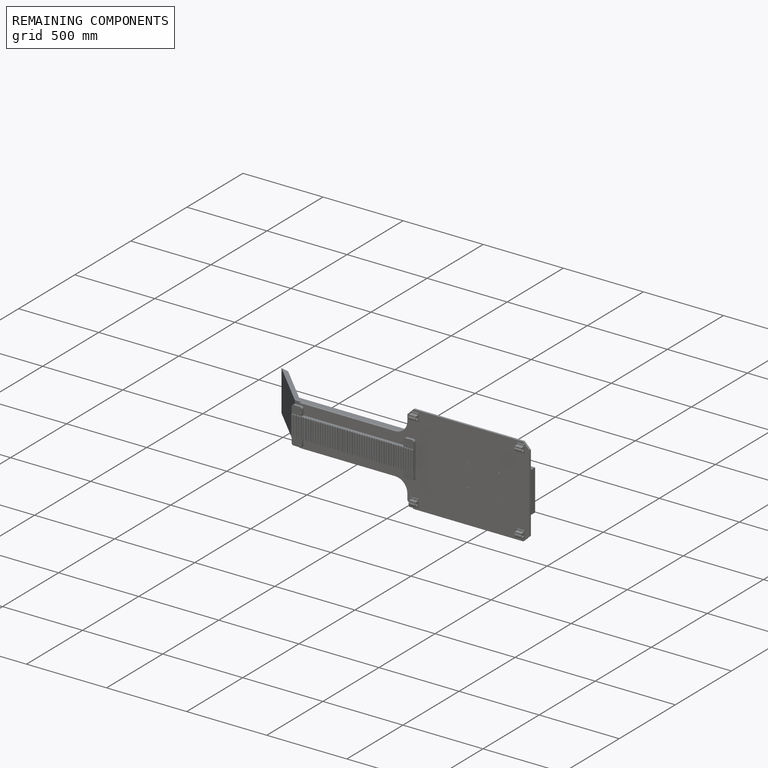
[diagram: remaining components — assembled]
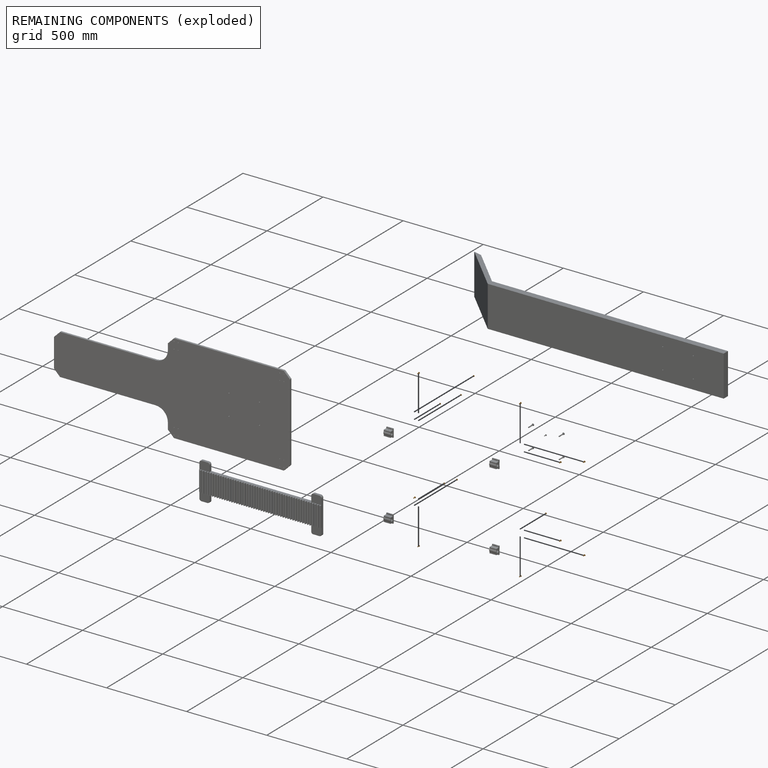
[diagram: remaining components — exploded]
REMAINING COMPONENTS (grouped) — the 15 components below fall outside the per-component tour by the significance rule stated above; both spotlight views highlight the whole group.
  P26: bounding box 16.6 x 10.7 x 10.7 mm, volume 333 mm^3. Held by: FASTENED mate "Fastened 21" to P24.
  P22: bounding box 16.6 x 10.7 x 10.7 mm, volume 333 mm^3. Held by: FASTENED mate "Fastened 9" to P24.
  P17: bounding box 16.6 x 10.7 x 10.7 mm, volume 333 mm^3. Held by: FASTENED mate "Fastened 22" to P24.
  P15: bounding box 16.6 x 10.7 x 10.7 mm, volume 333 mm^3. Held by: FASTENED mate "Fastened 10" to P24.
  P19: bounding box 16.6 x 10.7 x 10.7 mm, volume 333 mm^3. Held by: FASTENED mate "Fastened 17" to P24.
  P13: bounding box 16.6 x 10.7 x 10.7 mm, volume 333 mm^3. Held by: FASTENED mate "Fastened 8" to P24.
  P10: bounding box 16.6 x 10.7 x 10.7 mm, volume 333 mm^3. Held by: FASTENED mate "Fastened 19" to P24.
  P20: bounding box 16.6 x 10.7 x 10.7 mm, volume 333 mm^3. Held by: FASTENED mate "Fastened 18" to P24.
  P18: bounding box 16.6 x 10.7 x 10.7 mm, volume 333 mm^3. Held by: FASTENED mate "Fastened 14" to P24.
  P9: bounding box 16.6 x 10.7 x 10.7 mm, volume 333 mm^3. Held by: FASTENED mate "Fastened 12" to P24.
  P6: bounding box 16.6 x 10.7 x 10.7 mm, volume 333 mm^3. Held by: FASTENED mate "Fastened 15" to P24.
  P23: bounding box 16.6 x 10.7 x 10.7 mm, volume 333 mm^3. Held by: FASTENED mate "Fastened 7" to P24.
  P7: bounding box 16.6 x 10.7 x 10.7 mm, volume 333 mm^3. Held by: FASTENED mate "Fastened 20" to P24.
  P4: bounding box 16.6 x 10.7 x 10.7 mm, volume 333 mm^3. Held by: FASTENED mate "Fastened 16" to P24.
  P8: bounding box 16.6 x 10.7 x 10.7 mm, volume 333 mm^3. Held by: FASTENED mate "Fastened 11" to P24.
PROVENANCE & LICENSES
Assembly (occurrences, transforms, mates, per-part STEP geometry): AutoMate dataset, Zenodo record 7776208, CC0.
Construction recipes: CADFS (HuggingFace VladPyatov/CADFS, CC-BY-4.0, layered over the ABC dataset), FeatureScript reconstruction programs keyed by ABC model id.
Join: ABC meta listings map ABC model id -> Onshape documentId; within a shared document, parts are matched by geometric signature (bounding-box dims + volume at 0.1% relative tolerance, exact B-rep face/solid counts).
Verification: 3 of this assembly's 27 components carry a recipe attachment, and every attachment is mesh-verified: the CADFS STEP and the AutoMate member STEP were compared as meshes in their shared local frame (symmetric sampled-point-to-mesh distance); worst across the 3 attachments: below the mesh-comparison resolution (tessellation chordal tolerance ~2.69 mm) on a 1793 mm part.
Renders: orthographic iso camera (az 35 / el 25); the floor grid conveys scale (grid pitch printed in each image; no ruler). In the exploded view each component is displaced by its stored offset vector: the offsets alone carry the explosion direction (mate normal/axis signs are not orientation cues and do not encode it), and separation distances are assigned per mate-chain, not proportionally to assembly-order depth.
